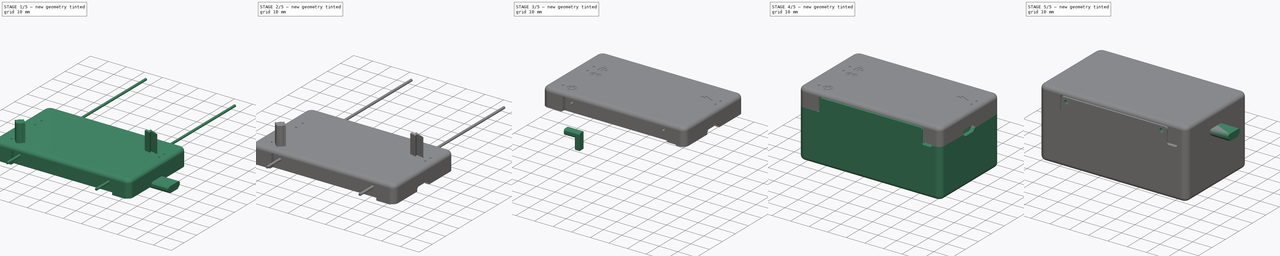
[diagram: build sequence overview — one tinted view per stage of 5, left to right]
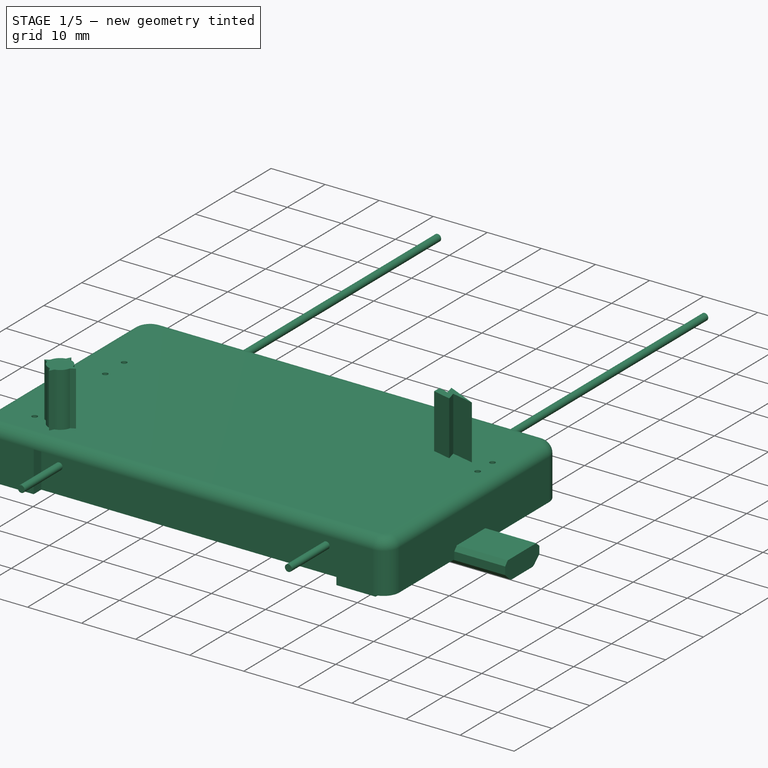
[diagram: stage 1 of 5 — iso view after this stage's code; geometry added in this stage tinted green]
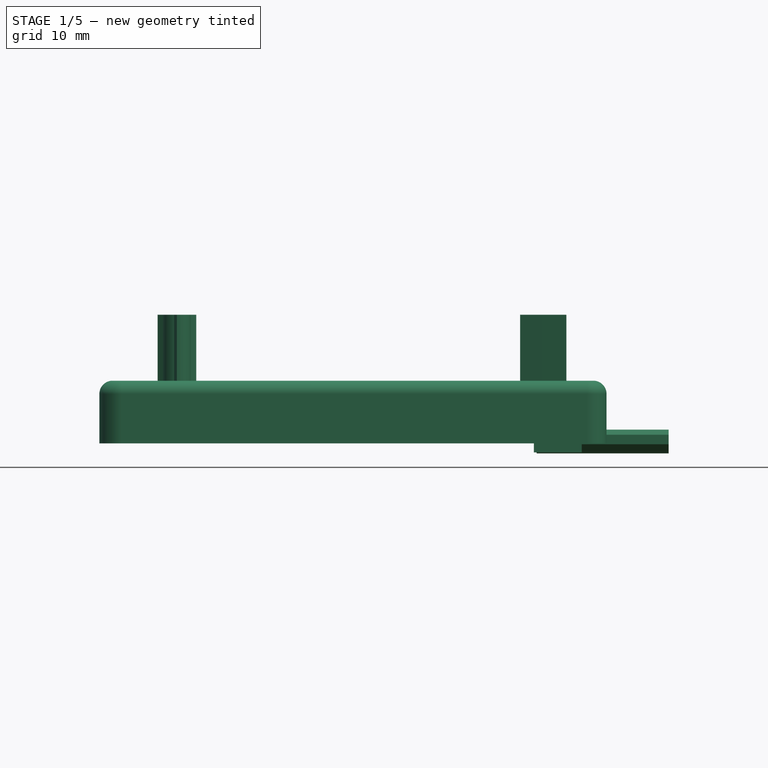
[diagram: stage 1 of 5 — front view after this stage's code; geometry added in this stage tinted green]
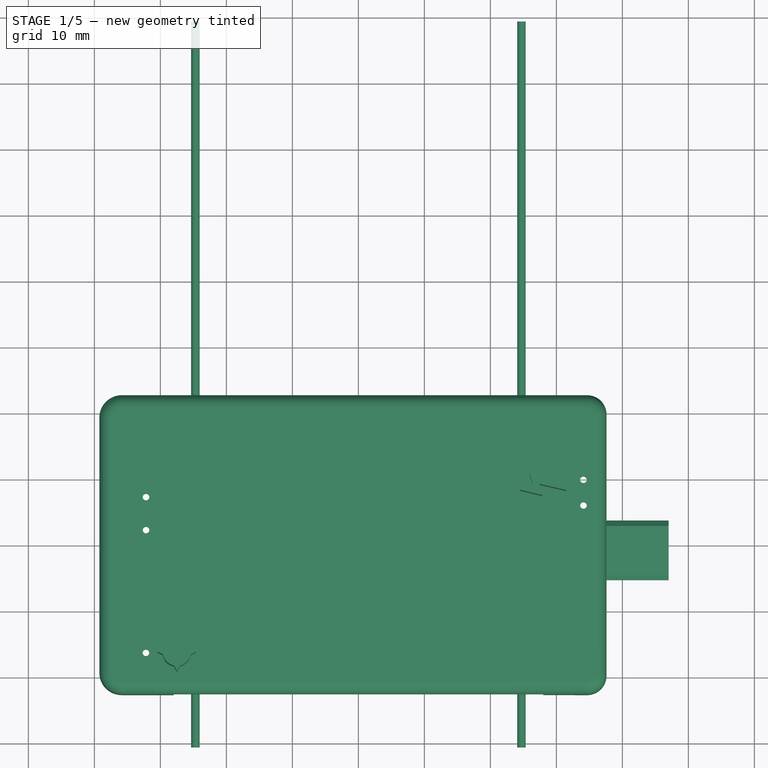
[diagram: stage 1 of 5 — top view after this stage's code; geometry added in this stage tinted green]
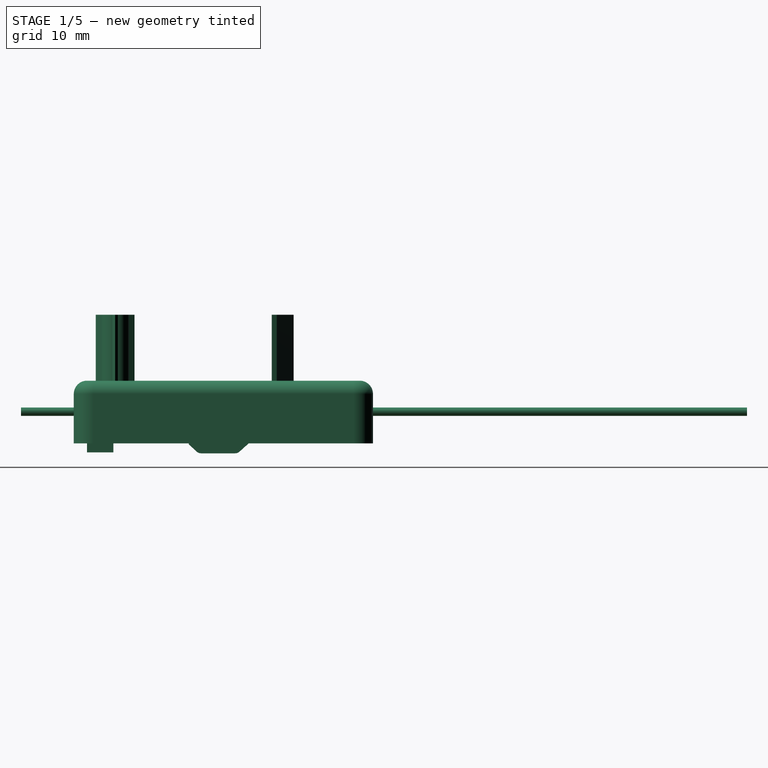
[diagram: stage 1 of 5 — right view after this stage's code; geometry added in this stage tinted green]
FCSTD DOCUMENT  (FreeCAD 0.16R6707 (Git))
Label: bttnc2-enc
License: All rights reserved
LicenseURL: http://en.wikipedia.org/wiki/All_rights_reserved
objects: Part::Feature×105, PartDesign::Fillet×48, Sketcher::SketchObject×29, PartDesign::Pad×24, Part::Cut×14, Part::Part2DObjectPython×6, PartDesign::Pocket×5, Image::ImagePlane×5, Part::MultiFuse×3, App::DocumentObjectGroup×2, Part::Thickness×2
note: 265 computed .brp shape members not serialized (recipe doc carries the construction recipe); baked Part::Feature solids carry a one-line shape summary decoded from their .brp

FEATURE [Part::Feature] Pcb
  Placement = pos=(-148.075,101.713,0) rot=(0,0,1;0rad)
  shape: bbox 69.99 x 40 x 1.6 mm, 47 faces (baked)
FEATURE [App::DocumentObjectGroup] Board_Geoms
  Group = -> [Pcb]
FEATURE [Part::Feature] Shape  label="c_1206_h078_"
  Placement = pos=(-20.7703,1.58625,-1.6) rot=(0.707107,0.707107,0;3.14159rad)
  shape: bbox 1.52 x 3.05 x 0.78 mm, 28 faces (baked)
FEATURE [Part::Feature] Shape001  label="c_0805_h078_"
  Placement = pos=(-0.70425,11.6828,-1.6) rot=(0.707107,0.707107,0;3.14159rad)
  shape: bbox 1.25 x 2 x 0.78 mm, 28 faces (baked)
FEATURE [Part::Feature] Shape002  label="c_0805_h078_001"
  Placement = pos=(-0.83125,-0.44575,-1.6) rot=(0,1,0;3.14159rad)
  shape: bbox 2 x 1.25 x 0.78 mm, 28 faces (baked)
FEATURE [Part::Feature] Shape003  label="c_0805_h078_002"
  Placement = pos=(1.51825,11.6828,-1.6) rot=(-0.707107,0.707107,0;3.14159rad)
  shape: bbox 1.25 x 2 x 0.78 mm, 28 faces (baked)
FEATURE [Part::Feature] Shape004  label="c_0805_h078_003"
  Placement = pos=(-2.86325,8.19025,0) rot=(0,0,1;1.5708rad)
  shape: bbox 1.25 x 2 x 0.78 mm, 28 faces (baked)
FEATURE [Part::Feature] Shape005  label="c_0805_h078_004"
  Placement = pos=(-13.0233,16.0008,-1.6) rot=(-0.707107,0.707107,0;3.14159rad)
  shape: bbox 1.25 x 2 x 0.78 mm, 28 faces (baked)
FEATURE [Part::Feature] Shape006  label="c_0805_h078_005"
  Placement = pos=(-17.3412,6.79325,-1.6) rot=(1,0,0;3.14159rad)
  shape: bbox 2 x 1.25 x 0.78 mm, 28 faces (baked)
FEATURE [Part::Feature] Shape007  label="c_0805_h078_006"
  Placement = pos=(-17.3412,13.0162,-1.6) rot=(0,1,0;3.14159rad)
  shape: bbox 2 x 1.25 x 0.78 mm, 28 faces (baked)
FEATURE [Part::Feature] Shape008  label="c_0805_h078_007"
  Placement = pos=(-19.2462,16.8897,-1.6) rot=(0,1,0;3.14159rad)
  shape: bbox 2 x 1.25 x 0.78 mm, 28 faces (baked)
FEATURE [Part::Feature] Shape009  label="c_0805_h078_008"
  Placement = pos=(8.31275,15.6832,-1.6) rot=(0,1,0;3.14159rad)
  shape: bbox 2 x 1.25 x 0.78 mm, 28 faces (baked)
FEATURE [Part::Feature] Shape010  label="c_0805_h078_009"
  Placement = pos=(-4.53965,-17.5653,0) rot=(0,0,-1;1.5708rad)
  shape: bbox 1.25 x 2 x 0.78 mm, 28 faces (baked)
FEATURE [Part::Feature] Shape011  label="c_1210_h152_"
  Placement = pos=(-1.59325,-17.159,0) rot=(0,0,-1;1.5708rad)
  shape: bbox 2.54 x 3.05 x 1.52 mm, 28 faces (baked)
FEATURE [Part::Feature] Shape012  label="c_0805_h078_010"
  Placement = pos=(-26.5487,-16.1938,0) rot=(0,0,-1;1.5708rad)
  shape: bbox 1.25 x 2 x 0.78 mm, 28 faces (baked)
FEATURE [Part::Feature] Shape013  label="c_0805_h078_011"
  Placement = pos=(-31.9462,-12.8918,0) rot=(0,0,1;3.14159rad)
  shape: bbox 2 x 1.25 x 0.78 mm, 28 faces (baked)
FEATURE [Part::Feature] Shape014  label="c_0805_h078_012"
  Placement = pos=(-31.9462,-10.2248,0) rot=(0,0,1;3.14159rad)
  shape: bbox 2 x 1.25 x 0.78 mm, 28 faces (baked)
FEATURE [Part::Feature] Shape015  label="c_0805_h078_013"
  Placement = pos=(-18.3573,1.07825,-1.6) rot=(0.707107,0.707107,0;3.14159rad)
  shape: bbox 1.25 x 2 x 0.78 mm, 28 faces (baked)
FEATURE [Part::Feature] Shape016  label="c_0805_h078_014"
  Placement = pos=(8.82075,9.46025,-1.6) rot=(0,1,0;3.14159rad)
  shape: bbox 2 x 1.25 x 0.78 mm, 28 faces (baked)
FEATURE [Part::Feature] Shape017  label="c_0805_h078_015"
  Placement = pos=(-28.3903,-2.54125,0) rot=(0,0,1;1.5708rad)
  shape: bbox 1.25 x 2 x 0.78 mm, 28 faces (baked)
FEATURE [Part::Feature] Shape018  label="c_0805_h078_016"
  Placement = pos=(33.2047,-6.16075,-1.6) rot=(1,0,0;3.14159rad)
  shape: bbox 2 x 1.25 x 0.78 mm, 28 faces (baked)
FEATURE [Part::Feature] Shape019  label="c_0805_h078_017"
  Placement = pos=(26.6008,-5.90675,-1.6) rot=(1,0,0;3.14159rad)
  shape: bbox 2 x 1.25 x 0.78 mm, 28 faces (baked)
FEATURE [Part::Feature] Shape020  label="c_0805_h078_018"
  Placement = pos=(-14.5473,7.99975,-1.6) rot=(0.707107,0.707107,0;3.14159rad)
  shape: bbox 1.25 x 2 x 0.78 mm, 28 faces (baked)
FEATURE [Part::Feature] Shape021  label="c_0805_h078_019"
  Placement = pos=(8.31275,17.5882,-1.6) rot=(0,1,0;3.14159rad)
  shape: bbox 2 x 1.25 x 0.78 mm, 28 faces (baked)
FEATURE [Part::Feature] Shape022  label="c_1206_h078_001"
  Placement = pos=(-15.7538,4.25325,-1.6) rot=(0,1,0;3.14159rad)
  shape: bbox 3.05 x 1.52 x 0.78 mm, 28 faces (baked)
FEATURE [Part::Feature] Shape023  label="User Library-led_0805_"
  Placement = pos=(-32.2002,2.22125,0) rot=(0,0,-1;1.5708rad)
  shape: bbox 1.25 x 2.02 x 1.1 mm, 53 faces (baked)
FEATURE [Part::Feature] Shape024  label="User Library-led_0805_001"
  Placement = pos=(33.9667,5.90425,0) rot=(0,0,1;1.5708rad)
  shape: bbox 1.25 x 2.02 x 1.1 mm, 53 faces (baked)
FEATURE [Part::Feature] Shape025  label="User Library-led_0805_002"
  Placement = pos=(-32.2002,7.17425,0) rot=(0,0,-1;1.5708rad)
  shape: bbox 1.25 x 2.02 x 1.1 mm, 53 faces (baked)
FEATURE [Part::Feature] Shape026  label="User Library-led_0805_003"
  Placement = pos=(33.9667,9.84125,0) rot=(0,0,-1;1.5708rad)
  shape: bbox 1.25 x 2.02 x 1.1 mm, 53 faces (baked)
FEATURE [Part::Feature] Shape027  label="c_0805_h078_020"
  Placement = pos=(-24.0723,4.88825,-1.6) rot=(0,1,0;3.14159rad)
  shape: bbox 2 x 1.25 x 0.78 mm, 28 faces (baked)
FEATURE [Part::Feature] Shape028  label="c_0805_h078_021"
  Placement = pos=(-20.8972,6.79325,-1.6) rot=(0.707107,0.707107,0;3.14159rad)
  shape: bbox 1.25 x 2 x 0.78 mm, 28 faces (baked)
FEATURE [Part::Feature] Shape029  label="c_0805_h078_022"
  Placement = pos=(-7.43525,16.1913,-1.6) rot=(0.707107,0.707107,0;3.14159rad)
  shape: bbox 1.25 x 2 x 0.78 mm, 28 faces (baked)
FEATURE [Part::Feature] Shape030  label="c_0805_h078_023"
  Placement = pos=(-2.79975,4.88825,0) rot=(0,0,1;3.14159rad)
  shape: bbox 2 x 1.25 x 0.78 mm, 28 faces (baked)
FEATURE [Part::Feature] Shape031  label="c_0805_h078_024"
  Placement = pos=(-3.94275,-2.98575,0) rot=(0,0,-1;1.5708rad)
  shape: bbox 1.25 x 2 x 0.78 mm, 28 faces (baked)
FEATURE [Part::Feature] Shape032  label="c_0805_h078_025"
  Placement = pos=(-22.9928,16.8897,-1.6) rot=(0,1,0;3.14159rad)
  shape: bbox 2 x 1.25 x 0.78 mm, 28 faces (baked)
FEATURE [Part::Feature] Shape033  label="c_0805_h078_026"
  Placement = pos=(-3.94275,-7.43075,0) rot=(0,0,-1;1.5708rad)
  shape: bbox 1.25 x 2 x 0.78 mm, 28 faces (baked)
FEATURE [Part::Feature] Shape034  label="c_0805_h078_027"
  Placement = pos=(-7.37175,-0.76325,-1.6) rot=(-0.707107,0.707107,0;3.14159rad)
  shape: bbox 1.25 x 2 x 0.78 mm, 28 faces (baked)
FEATURE [Part::Feature] Shape035  label="Fusion_"
  Placement = pos=(30.1567,-18.6702,0) rot=(0,0,1;0rad)
  shape: bbox 7.7 x 5.2 x 1.9 mm, 50 faces (baked)
FEATURE [Part::Feature] Shape036  label="c_0805_h078_028"
  Placement = pos=(-27.5012,-12.8918,0) rot=(0,0,1;3.14159rad)
  shape: bbox 2 x 1.25 x 0.78 mm, 28 faces (baked)
FEATURE [Part::Feature] Shape037  label="c_0805_h078_029"
  Placement = pos=(-28.3903,-10.0977,0) rot=(0,0,1;1.5708rad)
  shape: bbox 1.25 x 2 x 0.78 mm, 28 faces (baked)
FEATURE [Part::Feature] Shape038  label="c_0805_h078_030"
  Placement = pos=(-28.3903,-6.41475,0) rot=(0,0,1;1.5708rad)
  shape: bbox 1.25 x 2 x 0.78 mm, 28 faces (baked)
FEATURE [Part::Feature] Shape039  label="ASSEMBLY_"
  Placement = pos=(33.2047,-8.25625,0) rot=(0,0,-1;1.5708rad)
FEATURE [Part::Feature] Shape040  label="User_Library-MicroUSB-B_Molex_105017-0001_"
  Placement = pos=(32.3792,-0.76325,0) rot=(0,0,1;1.5708rad)
  shape: bbox 5.43 x 8.2 x 3.3 mm, 436 faces (baked)
FEATURE [Part::Feature] Shape041  label="R_0805_"
  Placement = pos=(0.81975,12.8893,0) rot=(0,0,1;0rad)
  shape: bbox 2 x 1.25 x 0.5 mm, 28 faces (baked)
FEATURE [Part::Feature] Shape042  label="R_0805_001"
  Placement = pos=(-4.38725,17.2072,0) rot=(0,0,-1;1.5708rad)
  shape: bbox 1.25 x 2 x 0.5 mm, 28 faces (baked)
FEATURE [Part::Feature] Shape043  label="R_0805_002"
  Placement = pos=(-10.3562,17.0167,-1.6) rot=(0,1,0;3.14159rad)
  shape: bbox 2 x 1.25 x 0.5 mm, 28 faces (baked)
FEATURE [Part::Feature] Shape044  label="R_0805_003"
  Placement = pos=(-15.6903,16.8897,-1.6) rot=(1,0,0;3.14159rad)
  shape: bbox 2 x 1.25 x 0.5 mm, 28 faces (baked)
FEATURE [Part::Feature] Shape045  label="R_0805_004"
  Placement = pos=(-17.3921,14.9339,-1.6) rot=(1,0,0;3.14159rad)
  shape: bbox 2 x 1.25 x 0.5 mm, 28 faces (baked)
FEATURE [Part::Feature] Shape046  label="R_0805_005"
  Placement = pos=(-1.84725,0.82425,0) rot=(0,0,1;1.5708rad)
  shape: bbox 1.25 x 2 x 0.5 mm, 28 faces (baked)
FEATURE [Part::Feature] Shape047  label="R_0805_006"
  Placement = pos=(-4.00625,0.82425,0) rot=(0,0,-1;1.5708rad)
  shape: bbox 1.25 x 2 x 0.5 mm, 28 faces (baked)
FEATURE [Part::Feature] Shape048  label="R_0805_007"
  Placement = pos=(6.02675,-0.44575,-1.6) rot=(1,0,0;3.14159rad)
  shape: bbox 2 x 1.25 x 0.5 mm, 28 faces (baked)
FEATURE [Part::Feature] Shape049  label="R_0805_008"
  Placement = pos=(19.1839,7.12345,-1.6) rot=(1,0,0;3.14159rad)
  shape: bbox 2 x 1.25 x 0.5 mm, 28 faces (baked)
FEATURE [Part::Feature] Shape050  label="R_0805_009"
  Placement = pos=(-29.4062,1.20525,0) rot=(0,0,1;3.14159rad)
  shape: bbox 2 x 1.25 x 0.5 mm, 28 faces (baked)
FEATURE [Part::Feature] Shape051  label="R_0805_010"
  Placement = pos=(0.18475,4.69775,0) rot=(0,0,-1;1.5708rad)
  shape: bbox 1.25 x 2 x 0.5 mm, 28 faces (baked)
FEATURE [Part::Feature] Shape052  label="R_0805_011"
  Placement = pos=(26.4103,-4.00175,-1.6) rot=(1,0,0;3.14159rad)
  shape: bbox 2 x 1.25 x 0.5 mm, 28 faces (baked)
FEATURE [Part::Feature] Shape053  label="R_0805_012"
  Placement = pos=(27.9977,-14.1617,0) rot=(0,0,1;3.14159rad)
  shape: bbox 2 x 1.25 x 0.5 mm, 28 faces (baked)
FEATURE [Part::Feature] Shape054  label="R_0805_013"
  Placement = pos=(26.6008,-13.1457,-1.6) rot=(-0.707107,0.707107,0;3.14159rad)
  shape: bbox 1.25 x 2 x 0.5 mm, 28 faces (baked)
FEATURE [Part::Feature] Shape055  label="R_0805_014"
  Placement = pos=(11.6148,12.3812,-1.6) rot=(-0.707107,0.707107,0;3.14159rad)
  shape: bbox 1.25 x 2 x 0.5 mm, 28 faces (baked)
FEATURE [Part::Feature] Shape056  label="R_0805_015"
  Placement = pos=(-29.4062,6.15825,0) rot=(0,0,1;3.14159rad)
  shape: bbox 2 x 1.25 x 0.5 mm, 28 faces (baked)
FEATURE [Part::Feature] Shape057  label="R_0805_016"
  Placement = pos=(28.2264,1.58625,-1.6) rot=(-0.707107,0.707107,0;3.14159rad)
  shape: bbox 1.25 x 2 x 0.5 mm, 28 faces (baked)
FEATURE [Part::Feature] Shape058  label="R_0805_017"
  Placement = pos=(26.1436,1.53545,-1.6) rot=(0.707107,0.707107,0;3.14159rad)
  shape: bbox 1.25 x 2 x 0.5 mm, 28 faces (baked)
FEATURE [Part::Feature] Shape059  label="User_Library-Bluetooth_HC-06___"
  Placement = pos=(7.42375,17.2707,0) rot=(0,0,-1;1.5708rad)
  shape: bbox 28.05 x 14.06 x 2.387 mm, 1097 faces (baked)
FEATURE [Part::Feature] Shape060  label="DBCC3AE1-0DB8-4925-91AA-5759F3836E66_"
  Placement = pos=(-15.4998,1.07825,-1.6) rot=(1,0,0;3.14159rad)
  shape: bbox 3 x 2.5 x 1.1 mm, 49 faces (baked)
FEATURE [Part::Feature] Shape061  label="BDA441D8-A5C4-4C44-A8A0-E9EBD450C16B_"
  Placement = pos=(8.69375,12.5083,-1.6) rot=(0.707107,0.707107,0;3.14159rad)
  shape: bbox 3 x 2.5 x 1.1 mm, 75 faces (baked)
FEATURE [Part::Feature] Shape062  label="User Library-TQFP32-2_"
  Placement = pos=(-7.81625,8.69825,-1.6) rot=(1,0,0;3.14159rad)
  shape: bbox 9 x 9 x 1 mm, 445 faces (baked)
FEATURE [Part::Feature] Shape063  label="Fusion_001"
  Placement = pos=(26.6008,-9.33575,-1.6) rot=(0.707107,0.707107,0;3.14159rad)
  shape: bbox 2.9 x 2.4 x 1.1 mm, 142 faces (baked)
FEATURE [Part::Feature] Shape064  label="soic_8_39x49_ep_p127_"
  Placement = pos=(27.7437,-9.08175,0) rot=(0,0,1;1.5708rad)
  shape: bbox 4.9 x 6 x 1.75 mm, 161 faces (baked)
FEATURE [Part::Feature] Shape065  label="Fusion_002"
  Placement = pos=(30.0297,-9.46275,-1.6) rot=(0.707107,0.707107,0;3.14159rad)
  shape: bbox 3 x 6.4 x 1.2 mm, 127 faces (baked)
FEATURE [Part::Feature] Shape066  label="Fusion_003"
  Placement = pos=(-17.2142,9.90475,-1.6) rot=(-0.707107,0.707107,0;3.14159rad)
  shape: bbox 2.631 x 3.408 x 0.6002 mm, 91 faces (baked)
FEATURE [Part::Feature] Shape067  label="User Library-MiniMelf-2_"
  Placement = pos=(23.6797,13.5243,-1.6) rot=(0,1,0;3.14159rad)
  shape: bbox 3.7 x 1.732 x 1.732 mm, 117 faces (baked)
FEATURE [Part::Feature] Shape068  label="User Library-MiniMelf-2_001"
  Placement = pos=(-11.4992,0.63375,-1.6) rot=(1,0,0;3.14159rad)
  shape: bbox 3.7 x 1.732 x 1.732 mm, 117 faces (baked)
FEATURE [Part::Feature] Shape069  label="R_0805_018"
  Placement = pos=(-10.7372,-1.71575,-1.6) rot=(1,0,0;3.14159rad)
  shape: bbox 2 x 1.25 x 0.5 mm, 28 faces (baked)
FEATURE [Part::Feature] Shape070  label="c_0805_h078_031"
  Placement = pos=(4.69325,11.6828,-1.6) rot=(0.707107,0.707107,0;3.14159rad)
  shape: bbox 1.25 x 2 x 0.78 mm, 28 faces (baked)
FEATURE [Part::Feature] Shape071  label="c_0805_h078_032"
  Placement = pos=(-0.95825,4.76125,-1.6) rot=(-0.707107,0.707107,0;3.14159rad)
  shape: bbox 1.25 x 2 x 0.78 mm, 28 faces (baked)
FEATURE [Part::Feature] Shape072  label="R_0805_019"
  Placement = pos=(2.72475,-0.44575,-1.6) rot=(1,0,0;3.14159rad)
  shape: bbox 2 x 1.25 x 0.5 mm, 28 faces (baked)
FEATURE [Part::Feature] Shape073  label="R_0805_020"
  Placement = pos=(2.15325,4.69775,0) rot=(0,0,-1;1.5708rad)
  shape: bbox 1.25 x 2 x 0.5 mm, 28 faces (baked)
FEATURE [Part::Feature] Shape074  label="soic_8_39x49_ep_p127_001_"
  Placement = pos=(2.78825,4.88825,-1.6) rot=(0,1,0;3.14159rad)
  shape: bbox 4.9 x 6 x 1.75 mm, 161 faces (baked)
FEATURE [Part::Feature] Shape075  label="c_1206_h078_002"
  Placement = pos=(22.1558,-9.46275,0) rot=(0,0,-1;1.5708rad)
  shape: bbox 1.52 x 3.05 x 0.78 mm, 28 faces (baked)
FEATURE [Part::Feature] Shape076  label="c_0805_h078_033"
  Placement = pos=(22.1811,-9.38655,-1.6) rot=(-0.707107,0.707107,0;3.14159rad)
  shape: bbox 1.25 x 2 x 0.78 mm, 28 faces (baked)
FEATURE [Part::Feature] Shape077  label="c_0805_h078_034"
  Placement = pos=(22.9178,-17.4638,0) rot=(0,0,1;3.14159rad)
  shape: bbox 2 x 1.25 x 0.78 mm, 28 faces (baked)
FEATURE [Part::Feature] Shape078  label="c_1206_h078_003"
  Placement = pos=(23.0448,-15.1777,0) rot=(0,0,1;3.14159rad)
  shape: bbox 3.05 x 1.52 x 0.78 mm, 28 faces (baked)
FEATURE [Part::Feature] Shape079  label="c_0805_h078_035"
  Placement = pos=(12.4276,-8.06575,-1.6) rot=(0.707107,0.707107,0;3.14159rad)
  shape: bbox 1.25 x 2 x 0.78 mm, 28 faces (baked)
FEATURE [Part::Feature] Shape080  label="c_1206_h078_004"
  Placement = pos=(14.5611,-8.06575,-1.6) rot=(-0.707107,0.707107,0;3.14159rad)
  shape: bbox 1.52 x 3.05 x 0.78 mm, 28 faces (baked)
FEATURE [Part::Feature] Shape081  label="User Library-MiniMelf-2_002"
  Placement = pos=(19.1077,-11.7487,-1.6) rot=(0.707107,0.707107,0;3.14159rad)
  shape: bbox 1.732 x 3.7 x 1.732 mm, 117 faces (baked)
FEATURE [Part::Feature] Shape082  label="User Library-led_0805_004"
  Placement = pos=(-32.2002,-16.397,0) rot=(0,0,1;1.5708rad)
  shape: bbox 1.25 x 2.02 x 1.1 mm, 53 faces (baked)
FEATURE [Part::Feature] Shape083  label="User Library-MiniMelf-2_003"
  Placement = pos=(3.74075,-3.23975,-1.6) rot=(0,1,0;3.14159rad)
  shape: bbox 3.7 x 1.732 x 1.732 mm, 117 faces (baked)
FEATURE [Part::Feature] Shape084  label="User Library-MiniMelf-2_004"
  Placement = pos=(9.58275,-1.36015,-1.6) rot=(0.707107,0.707107,0;3.14159rad)
  shape: bbox 1.732 x 3.7 x 1.732 mm, 117 faces (baked)
FEATURE [Part::Feature] Shape085  label="DBCC3AE1-0DB8-4925-91AA-5759F3836E66_001"
  Placement = pos=(-29.8889,-16.6001,-1.6) rot=(0,1,0;3.14159rad)
  shape: bbox 3 x 2.5 x 1.1 mm, 49 faces (baked)
FEATURE [Part::Feature] Shape086  label="R_0805_021"
  Placement = pos=(15.4247,-3.36675,-1.6) rot=(1,0,0;3.14159rad)
  shape: bbox 2 x 1.25 x 0.5 mm, 28 faces (baked)
FEATURE [Part::Feature] Shape087  label="R_0805_022"
  Placement = pos=(-30.0921,-13.6029,-1.6) rot=(0,1,0;3.14159rad)
  shape: bbox 2 x 1.25 x 0.5 mm, 28 faces (baked)
FEATURE [Part::Feature] Shape088  label="R_0805_023"
  Placement = pos=(10.3447,-8.06575,-1.6) rot=(0.707107,0.707107,0;3.14159rad)
  shape: bbox 1.25 x 2 x 0.5 mm, 28 faces (baked)
FEATURE [Part::Feature] Shape089  label="R_0805_024"
  Placement = pos=(-0.88205,-2.88415,-1.6) rot=(1,0,0;3.14159rad)
  shape: bbox 2 x 1.25 x 0.5 mm, 28 faces (baked)
FEATURE [Part::Feature] Shape090  label="User Library-Tact Sw RA 8.35mm 1-1825027-1_"
  Placement = pos=(-34.8672,13.9053,4.0005) rot=(0.57735,-0.57735,-0.57735;2.0944rad)
  shape: bbox 12.36 x 8.407 x 10.52 mm, 118 faces (baked)
FEATURE [Part::Feature] Shape091  label="User_Library-quectel-l80_"
  Placement = pos=(11.3607,-9.71675,0) rot=(0,0,1;0rad)
  shape: bbox 16 x 16 x 6.95 mm, 75 faces (baked)
FEATURE [Part::Feature] Shape092  label="R_0805_025"
  Placement = pos=(22.5368,-2.93495,0) rot=(0,0,1;0rad)
  shape: bbox 2 x 1.25 x 0.5 mm, 28 faces (baked)
FEATURE [Part::Feature] Shape093  label="R_0805_026"
  Placement = pos=(22.0796,-5.32255,-1.6) rot=(-0.707107,0.707107,0;3.14159rad)
  shape: bbox 1.25 x 2 x 0.5 mm, 28 faces (baked)
FEATURE [Part::Feature] Shape094  label="User_Library-sot363_"
  Placement = pos=(22.5368,-5.77975,0) rot=(0,0,-1;1.5708rad)
  shape: bbox 2.105 x 2.3 x 1.01 mm, 99 faces (baked)
FEATURE [Part::Feature] Shape095  label="User Library-MiniMelf-2_005"
  Placement = pos=(9.32875,-13.2474,-1.6) rot=(-0.707107,0.707107,0;3.14159rad)
  shape: bbox 1.732 x 3.7 x 1.732 mm, 117 faces (baked)
FEATURE [Part::Feature] Shape096  label="c_0805_h078_036"
  Placement = pos=(27.8072,-0.00125,0) rot=(0,0,1;1.5708rad)
  shape: bbox 1.25 x 2 x 0.78 mm, 28 faces (baked)
FEATURE [Part::Feature] Shape097  label="c_0805_h078_037"
  Placement = pos=(-3.47285,-11.063,0) rot=(0,0,1;3.14159rad)
  shape: bbox 2 x 1.25 x 0.78 mm, 28 faces (baked)
FEATURE [Part::Feature] Shape098  label="c_0805_h078_038"
  Placement = pos=(-3.47285,-13.095,0) rot=(0,0,1;3.14159rad)
  shape: bbox 2 x 1.25 x 0.78 mm, 28 faces (baked)
FEATURE [Part::Feature] Shape099  label="R_0805_027"
  Placement = pos=(-0.47565,-11.9773,0) rot=(0,0,1;1.5708rad)
  shape: bbox 1.25 x 2 x 0.5 mm, 28 faces (baked)
FEATURE [Part::Feature] Shape100  label="User_Library-620-SMA-02-112-TGG_SMA_Female_for_PCB_edge_Mount_"
  Placement = pos=(-32.8606,-5.30985,0) rot=(0,0,-1;1.5708rad)
  shape: bbox 13.6 x 6.001 x 6.05 mm, 138 faces (baked)
FEATURE [Part::Feature] Shape101  label="dra818_"
  Placement = pos=(-15.4362,0.44325,0) rot=(0,0,-1;1.5708rad)
  shape: bbox 19.03 x 36 x 3.008 mm, 191 faces, 15 solids (baked)
FEATURE [App::DocumentObjectGroup] Step_Models
  Group = -> [Shape,Shape001,Shape002,Shape003,Shape004,Shape005,Shape006,Shape007,Shape008,Shape009,Shape010,Shape011,Shape012,Shape013,Shape014,Shape015,Shape016,Shape017,Shape018,Shape019,Shape020,Shape021,Shape022,Shape023,Shape024,Shape025,Shape026,Shape027,Shape028,Shape029,Shape030,Shape031,Shape032,Shape033,Shape034,Shape035,Shape036,Shape037,Shape038,Shape039,Shape040,Shape041,Shape042,Shape043,+58 more]
FEATURE [Part::Feature] Shape127  label="User Library-18650-1"
  Placement = pos=(-0.000379549,42.5728,-12.9007) rot=(0,0,1;0rad)
  shape: bbox 65 x 19.5 x 19.5 mm, 96 faces (baked)
FEATURE [Part::Feature] Shape152  label="User Library-18650-002"
  shape: bbox 65 x 19.5 x 19.5 mm, 96 faces (baked)
FEATURE [Sketcher::SketchObject] Sketch001
  Placement = pos=(-42,0,0) rot=(0.57735,-0.57735,-0.57735;2.0944rad)
  sketch-geometry (2):
    g0: Circle CenterX=5.32005 CenterY=0.515527 CenterZ=0 NormalX=0 NormalY=0 NormalZ=1 Radius=3.6
    g1: Circle CenterX=-13.9058 CenterY=4.001 CenterZ=0 NormalX=0 NormalY=0 NormalZ=1 Radius=2.2
  constraints (2):
    c: Radius(g1) = 2.2
    c: Radius(g0) = 3.6
FEATURE [PartDesign::Pad] Pad001
  Length = 1
  Length2 = 5
  Placement = pos=(-42,0,0) rot=(0.57735,-0.57735,-0.57735;2.0944rad)
  Sketch = -> Sketch001
  Type = 4
FEATURE [Sketcher::SketchObject] Sketch003
  Placement = pos=(0,-25,0) rot=(1,0,0;1.5708rad)
  sketch-geometry (4):
    g0: LineSegment StartX=27.5093 StartY=1.40646 StartZ=0 EndX=32.7622 EndY=1.40646 EndZ=0
    g1: LineSegment StartX=32.7622 StartY=1.40646 StartZ=0 EndX=32.7622 EndY=-0.005629 EndZ=0
    g2: LineSegment StartX=32.7622 StartY=-0.005629 StartZ=0 EndX=27.5093 EndY=-0.005629 EndZ=0
    g3: LineSegment StartX=27.5093 StartY=-0.005629 StartZ=0 EndX=27.5093 EndY=1.40646 EndZ=0
  constraints (8):
    c: Coincident(g0,g1)
    c: Coincident(g1,g2)
    c: Coincident(g2,g3)
    c: Coincident(g3,g0)
    c: Horizontal(g0)
    c: Horizontal(g2)
    c: Vertical(g1)
    c: Vertical(g3)
FEATURE [PartDesign::Pad] Pad003
  Length = 1
  Length2 = 5
  Placement = pos=(0,-25,0) rot=(1,0,0;1.5708rad)
  Sketch = -> Sketch003
  Type = 4
FEATURE [PartDesign::Pad] Pad
  Length = 7.5
  Length2 = 100
  Placement = pos=(0,0,1) rot=(0,0,1;0rad)
  Sketch = -> Sketch
  Type = 0
FEATURE [Part::Thickness] Thickness
  Faces = -> Pad [Face9]
  Intersection = false
  Join = 0
  Mode = 0
  SelfIntersection = false
  Value = 2
FEATURE [Sketcher::SketchObject] Sketch007
  Placement = pos=(0,0,1) rot=(0,0,1;0rad)
  Support = -> Thickness001 [Face10]
FEATURE [Sketcher::SketchObject] Sketch008
  Placement = pos=(0,-22.6633,0) rot=(1,0,0;1.5708rad)
  Support = -> Thickness [Face11]
  sketch-geometry (4):
    g0: LineSegment StartX=-28 StartY=8.5 StartZ=0 EndX=28 EndY=8.5 EndZ=0
    g1: LineSegment StartX=28 StartY=8.5 StartZ=0 EndX=28 EndY=1 EndZ=0
    g2: LineSegment StartX=28 StartY=1 StartZ=0 EndX=-28 EndY=1 EndZ=0
    g3: LineSegment StartX=-28 StartY=1 StartZ=0 EndX=-28 EndY=8.5 EndZ=0
  constraints (12):
    c: Coincident(g0,g1)
    c: Coincident(g1,g2)
    c: Coincident(g2,g3)
    c: Coincident(g3,g0)
    c: Horizontal(g0)
    c: Horizontal(g2)
    c: Vertical(g1)
    c: Vertical(g3)
    c: DistanceY(g-1,g2) = 1
    c: DistanceY(g2,g0) = 7.5
    c: Symmetric(g0,g0,g-2)
    c: DistanceX(g0,g0) = 56
FEATURE [Sketcher::SketchObject] Sketch009
  Placement = pos=(0,0,1) rot=(0,0,1;0rad)
  Support = -> Thickness001 [Face10]
  sketch-geometry (8):
    g0: LineSegment StartX=-27.5 StartY=-20.9633 StartZ=0 EndX=27.5 EndY=-20.9633 EndZ=0
    g1: LineSegment StartX=27.5 StartY=-20.9633 StartZ=0 EndX=27.5 EndY=-22.6634 EndZ=0
    g2: LineSegment StartX=27.5 StartY=-22.6634 StartZ=0 EndX=-27.5 EndY=-22.6634 EndZ=0
    g3: LineSegment StartX=-27.5 StartY=-22.6634 StartZ=0 EndX=-27.5 EndY=-20.9633 EndZ=0
    g4: LineSegment StartX=-27.5 StartY=22.6634 StartZ=0 EndX=27.5 EndY=22.6634 EndZ=0
    g5: LineSegment StartX=27.5 StartY=22.6634 StartZ=0 EndX=27.5 EndY=20.9633 EndZ=0
    g6: LineSegment StartX=27.5 StartY=20.9633 StartZ=0 EndX=-27.5 EndY=20.9633 EndZ=0
    g7: LineSegment StartX=-27.5 StartY=20.9633 StartZ=0 EndX=-27.5 EndY=22.6634 EndZ=0
  constraints (24):
    c: Coincident(g0,g1)
    c: Coincident(g1,g2)
    c: Coincident(g2,g3)
    c: Coincident(g3,g0)
    c: Horizontal(g0)
    c: Horizontal(g2)
    c: Vertical(g1)
    c: Vertical(g3)
    c: DistanceX(g0,g0) = 55
    c: DistanceY(g2,g0) = 1.7
    c: Symmetric(g0,g0,g-2)
    c: Coincident(g5,g6)
    c: Coincident(g6,g7)
    c: Coincident(g7,g4)
    c: Horizontal(g4)
    c: Horizontal(g6)
    c: Vertical(g5)
    c: Vertical(g7)
    c: DistanceY(g6,g4) = 1.7
    c: DistanceX(g4,g4) = 55
    c: Symmetric(g4,g4,g-2)
    c: Symmetric(g5,g0,g-1)
    c: Coincident(g5,g4)
    c: DistanceY(g1,g4) = 45.3267
FEATURE [PartDesign::Pocket] Pocket
  Length = 50
  Sketch = -> Sketch008
  Type = 0
FEATURE [PartDesign::Pad] Pad008
  Length = 2
  Length2 = 100
  Sketch = -> Sketch010
  Type = 0
FEATURE [Part::Cut] Cut  label="Top"
  Base = -> Pad008
  Tool = -> Pad003
FEATURE [PartDesign::Pad] Pad010
  Length = 10
  Length2 = 10
  Placement = pos=(37,0,0) rot=(0.57735,0.57735,0.57735;2.0944rad)
  Sketch = -> Sketch002
  Type = 4
FEATURE [PartDesign::Fillet] Fillet
  Base = -> Pad010 [Edge17]
  Placement = pos=(37,0,0) rot=(0.57735,0.57735,0.57735;2.0944rad)
  Radius = 1
FEATURE [PartDesign::Fillet] Fillet006
  Base = -> Fillet [Edge3]
  Placement = pos=(37,0,0) rot=(0.57735,0.57735,0.57735;2.0944rad)
  Radius = 1
FEATURE [PartDesign::Pad] Pad011  label="LedCuts"
  Length = 10
  Length2 = 5
  Placement = pos=(0,0,9) rot=(0,0,1;0rad)
  Sketch = -> Sketch004
  Type = 4
FEATURE [Part::Cut] Cut002  label="Top001"
  Base = -> Cut
  Tool = -> Pad011
FEATURE [Part::Cut] Cut003
  Base = -> Cut002
  Tool = -> Pad001
FEATURE [Sketcher::SketchObject] Sketch015
  Placement = pos=(0,20.6633,0) rot=(1,0,0;1.5708rad)
  Support = -> Pocket001 [Face23]
FEATURE [Part::Part2DObjectPython] Clone2D001  label="Clone of Sketch011 (2D)"  # Draft 2D object (typed FeaturePython)
  Objects = -> [Sketch011]
  Placement = pos=(0,20.6633,0) rot=(1,0,0;1.5708rad)
  Scale = (1,1,1)
FEATURE [PartDesign::Pad] Pad013
  Length = 2
  Length2 = 100
  Placement = pos=(0,20.6633,0) rot=(1,0,0;1.5708rad)
  Sketch = -> Clone2D001
  Type = 0
FEATURE [Part::Part2DObjectPython] Clone2D002  label="Clone of Sketch018 (2D)"  # Draft 2D object (typed FeaturePython)
  Placement = pos=(0,-18.6633,0) rot=(0,0.707107,0.707107;3.14159rad)
  Scale = (1,1,1)
FEATURE [PartDesign::Pad] Pad016
  Length = 2
  Length2 = 2
  Placement = pos=(0,-18.6633,0) rot=(0,0.707107,0.707107;3.14159rad)
  Sketch = -> Clone2D002
  Type = 4
FEATURE [Part::Part2DObjectPython] Clone2D005  label="Clone of Sketch020 (2D)001"  # Draft 2D object (typed FeaturePython)
  Objects = -> [Sketch020]
  Placement = pos=(0,-20.6633,0) rot=(1,0,0;1.5708rad)
  Scale = (1,1,1)
FEATURE [PartDesign::Pad] Pad021
  Length = 10
  Length2 = 100
  Placement = pos=(0,-20.6633,0) rot=(1,0,0;1.5708rad)
  Sketch = -> Clone2D005
  Type = 4
FEATURE [PartDesign::Pad] Pad024
  Length = 10
  Length2 = 0.2
  Placement = pos=(0,0,10.5) rot=(0,0,1;0rad)
  Sketch = -> Sketch025
  Type = 4
FEATURE [PartDesign::Pad] Pad025
  Length = 0.2
  Length2 = 100
  Placement = pos=(0,0,10.3) rot=(0,0,1;0rad)
  Sketch = -> Sketch026
  Type = 0
FEATURE [Image::ImagePlane] ImagePlane003  label="Power"
  Placement = pos=(28,9,0) rot=(0,0,1;1.5708rad)
  XSize = 7
  YSize = 7
FEATURE [Sketcher::SketchObject] Sketch029  label="POwer"
  Placement = pos=(0,0,10.5) rot=(0,0,1;0rad)
  sketch-geometry (7):
    g0: LineSegment StartX=24.5065 StartY=9.62336 StartZ=0 EndX=26.3725 EndY=8.9622 EndZ=0
    g1: LineSegment StartX=26.3725 StartY=8.9622 StartZ=0 EndX=25.9291 EndY=10.6498 EndZ=0
    g2: LineSegment StartX=25.9291 StartY=10.6498 StartZ=0 EndX=31.5177 EndY=8.08512 EndZ=0
    g3: LineSegment StartX=31.5177 StartY=8.08512 StartZ=0 EndX=27.3976 EndY=9.03114 EndZ=0
    g4: LineSegment StartX=27.3976 StartY=9.03114 StartZ=0 EndX=27.856 EndY=7.32444 EndZ=0
    g5: LineSegment StartX=27.856 StartY=7.32444 StartZ=0 EndX=24.5065 EndY=8.13373 EndZ=0
    g6: LineSegment StartX=24.5065 StartY=8.13373 StartZ=0 EndX=24.5065 EndY=9.62336 EndZ=0
  constraints (8):
    c: Coincident(g0,g1)
    c: Coincident(g1,g2)
    c: Coincident(g2,g3)
    c: Coincident(g3,g4)
    c: Coincident(g4,g5)
    c: Coincident(g5,g6)
    c: Coincident(g6,g0)
    c: Vertical(g6)
FEATURE [PartDesign::Pad] Pad026
  Length = 10
  Length2 = 0.2
  Placement = pos=(0,0,10.5) rot=(0,0,1;0rad)
  Sketch = -> Sketch029
  Type = 4
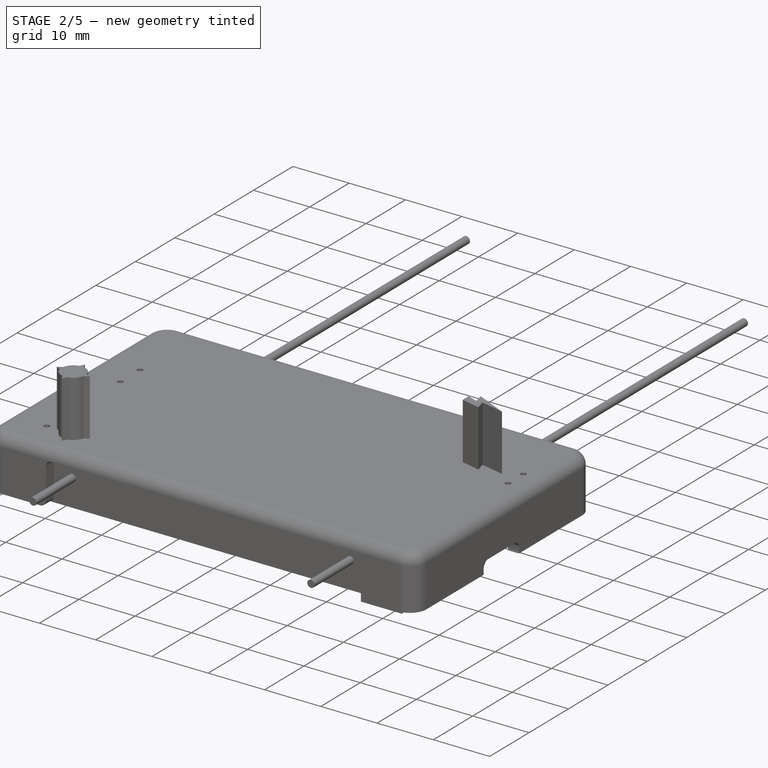
[diagram: stage 2 of 5 — iso view after this stage's code; geometry added in this stage tinted green]
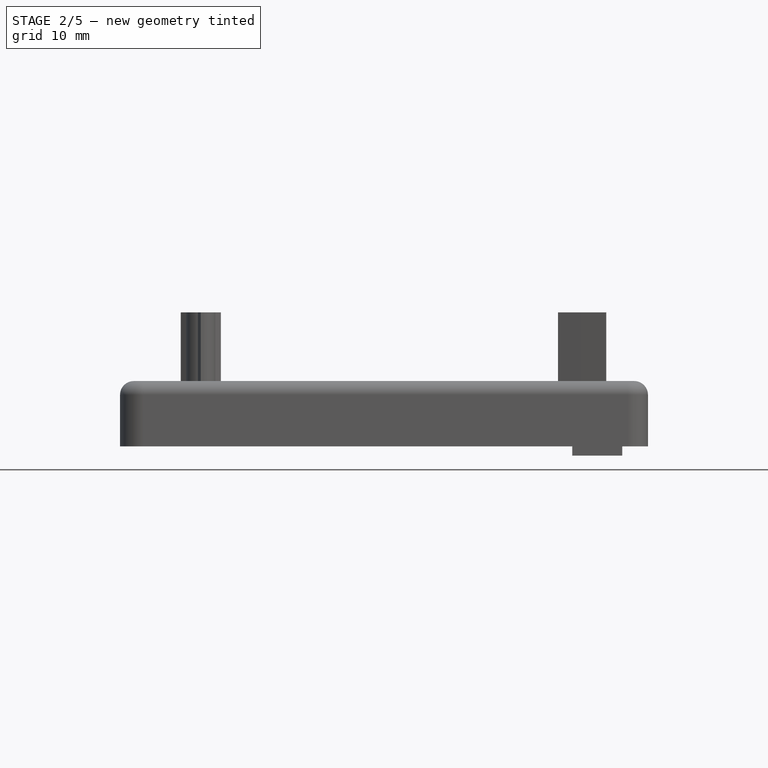
[diagram: stage 2 of 5 — front view after this stage's code; geometry added in this stage tinted green]
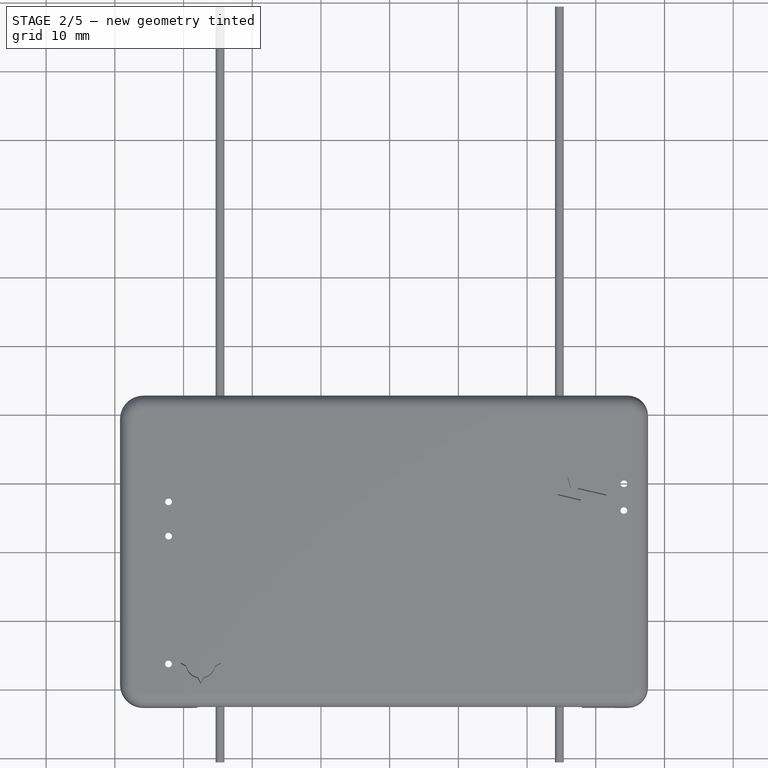
[diagram: stage 2 of 5 — top view after this stage's code; geometry added in this stage tinted green]
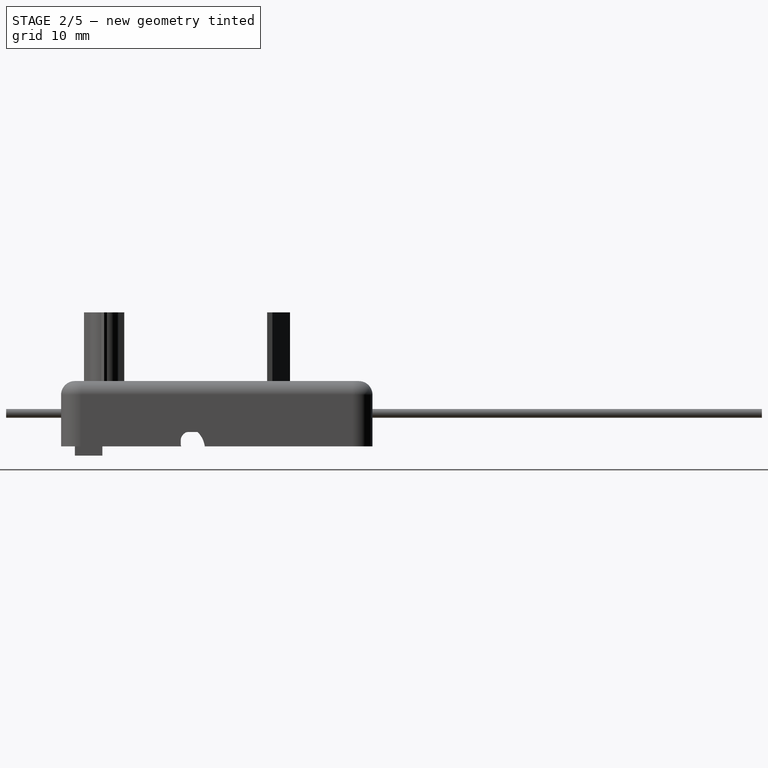
[diagram: stage 2 of 5 — right view after this stage's code; geometry added in this stage tinted green]
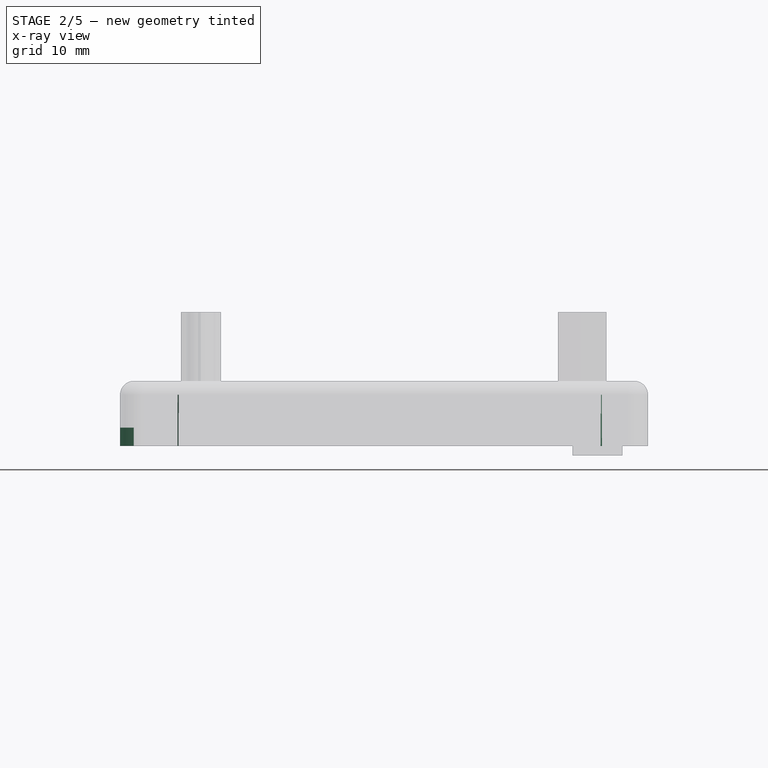
[diagram: stage 2 of 5 — x-ray composite at the front view; earlier geometry ghosted, this stage's added geometry solid]
FEATURE [PartDesign::Fillet] Fillet007
  Base = -> Fillet006 [Edge25]
  Placement = pos=(37,0,0) rot=(0.57735,0.57735,0.57735;2.0944rad)
  Radius = 1
FEATURE [PartDesign::Fillet] Fillet008
  Base = -> Fillet007 [Edge19]
  Placement = pos=(37,0,0) rot=(0.57735,0.57735,0.57735;2.0944rad)
  Radius = 1
FEATURE [PartDesign::Fillet] Fillet009
  Base = -> Fillet008 [Edge20]
  Placement = pos=(37,0,0) rot=(0.57735,0.57735,0.57735;2.0944rad)
  Radius = 1
FEATURE [PartDesign::Fillet] Fillet010
  Base = -> Fillet009 [Edge21]
  Placement = pos=(37,0,0) rot=(0.57735,0.57735,0.57735;2.0944rad)
  Radius = 1
FEATURE [PartDesign::Fillet] Fillet011
  Base = -> Fillet010 [Edge22]
  Placement = pos=(37,0,0) rot=(0.57735,0.57735,0.57735;2.0944rad)
  Radius = 1
FEATURE [PartDesign::Fillet] Fillet012  label="UsbCut"
  Base = -> Fillet011 [Edge23]
  Placement = pos=(37,0,0) rot=(0.57735,0.57735,0.57735;2.0944rad)
  Radius = 1
FEATURE [Part::Cut] Cut005
  Base = -> Cut003
  Tool = -> Fillet012
FEATURE [Sketcher::SketchObject] Sketch012
  Placement = pos=(-39.2421,0,0) rot=(0.57735,-0.57735,-0.57735;2.0944rad)
  Support = -> Cut005 [Face14]
  sketch-geometry (5):
    g0: LineSegment StartX=-16.0883 StartY=3.72307 StartZ=0 EndX=-16.0883 EndY=1 EndZ=0
    g1: LineSegment StartX=-16.0883 StartY=1 StartZ=0 EndX=-11.7412 EndY=1 EndZ=0
    g2: LineSegment StartX=-11.7412 StartY=1 StartZ=0 EndX=-11.7412 EndY=3.72307 EndZ=0
    g3: Circle CenterX=-13.758 CenterY=3.50704 CenterZ=0 NormalX=0 NormalY=0 NormalZ=1 Radius=0.042308
    g4: LineSegment StartX=-16.0883 StartY=3.72307 StartZ=0 EndX=-11.7412 EndY=3.72307 EndZ=0
  constraints (10):
    c: Coincident(g0,g1)
    c: Horizontal(g1)
    c: Coincident(g1,g2)
    c: Vertical(g2)
    c: Vertical(g0)
    c: DistanceY(g-1,g0) = 1
    c: DistanceY(g-1,g0) = 3.72307
    c: Coincident(g4,g0)
    c: Horizontal(g4)
    c: Coincident(g4,g2)
FEATURE [PartDesign::Pocket] Pocket001  label="Top002"
  Length = 5
  Sketch = -> Sketch012
  Type = 0
FEATURE [Part::MultiFuse] Fusion
  Shapes = -> [Pocket001,Pad013]
FEATURE [PartDesign::Fillet] Fillet024
  Base = -> Fusion [Edge104]
  Radius = 1
FEATURE [PartDesign::Fillet] Fillet025
  Base = -> Fillet024 [Edge9]
  Radius = 1
FEATURE [PartDesign::Fillet] Fillet026
  Base = -> Fillet025 [Edge47]
  Radius = 1
FEATURE [PartDesign::Fillet] Fillet027
  Base = -> Fillet026 [Edge168]
  Radius = 1
FEATURE [PartDesign::Fillet] Fillet028
  Base = -> Fillet027 [Edge40]
  Radius = 1
FEATURE [PartDesign::Fillet] Fillet029
  Base = -> Fillet028 [Edge33]
  Radius = 1
FEATURE [PartDesign::Fillet] Fillet030
  Base = -> Fillet029 [Edge46]
  Radius = 1
FEATURE [PartDesign::Fillet] Fillet031
  Base = -> Fillet030 [Edge105]
  Radius = 1
FEATURE [PartDesign::Fillet] Fillet032
  Base = -> Fillet031 [Edge29]
  Radius = 1
FEATURE [PartDesign::Fillet] Fillet033
  Base = -> Fillet032 [Edge149]
  Radius = 1
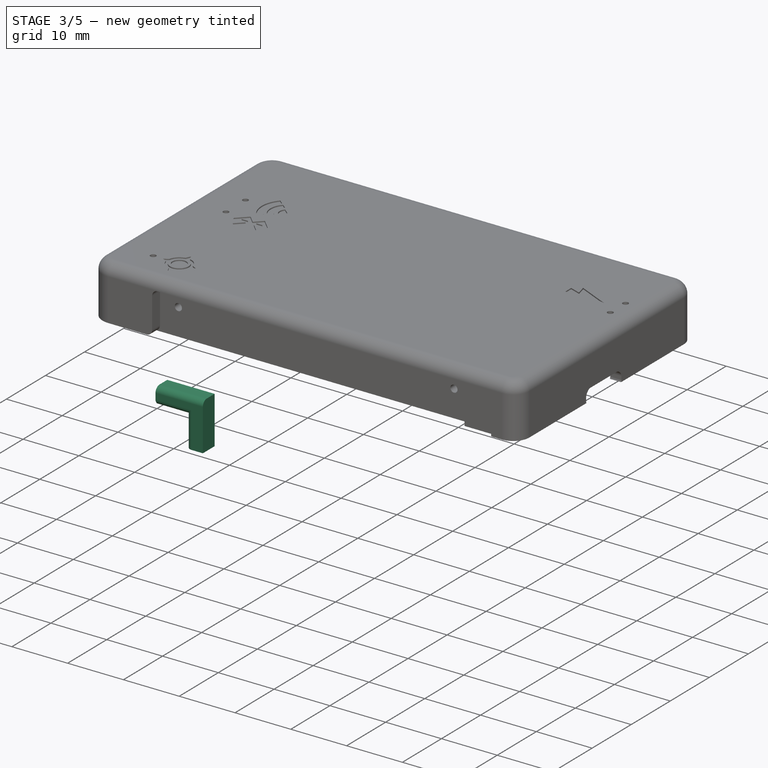
[diagram: stage 3 of 5 — iso view after this stage's code; geometry added in this stage tinted green]
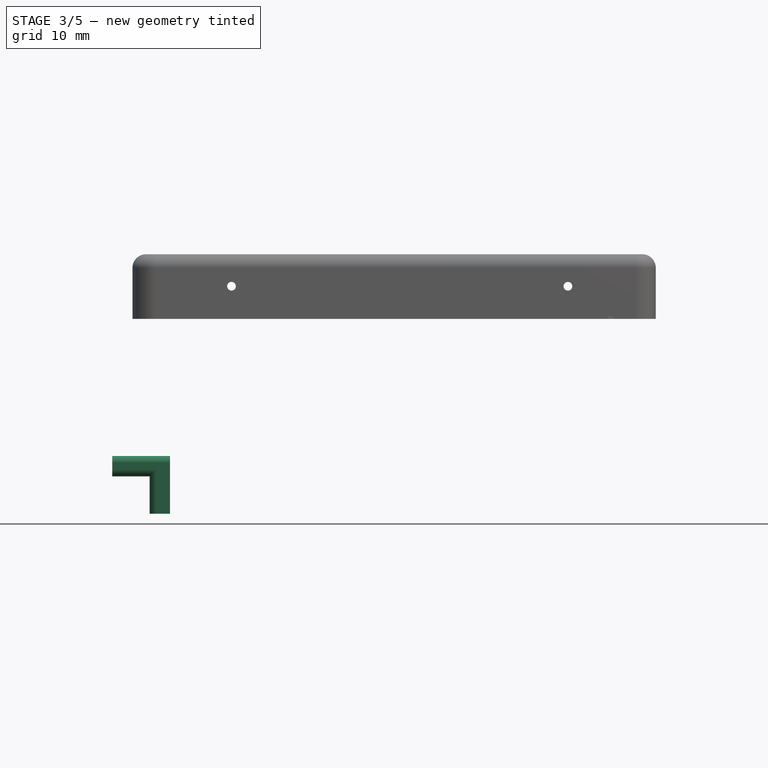
[diagram: stage 3 of 5 — front view after this stage's code; geometry added in this stage tinted green]
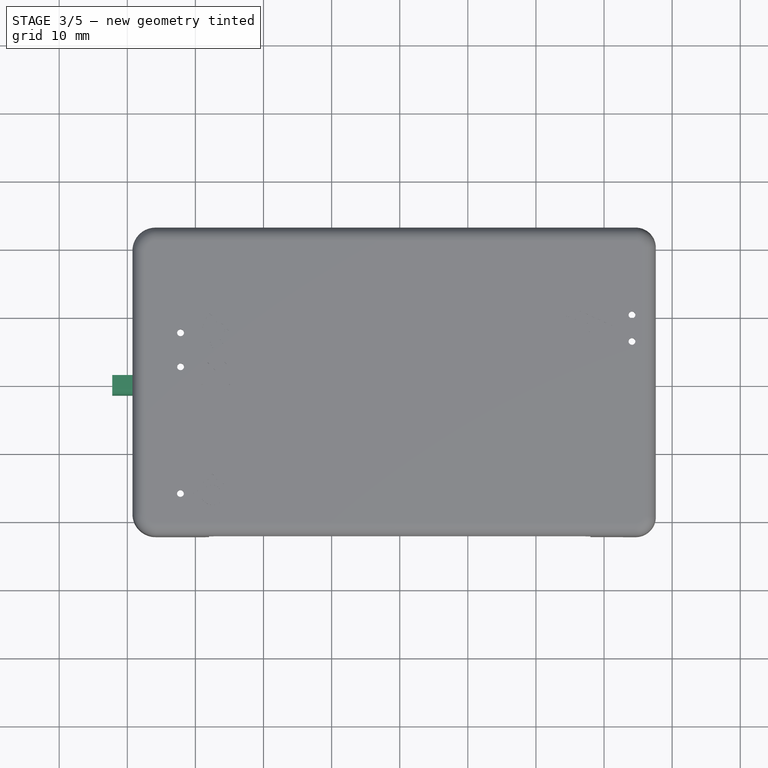
[diagram: stage 3 of 5 — top view after this stage's code; geometry added in this stage tinted green]
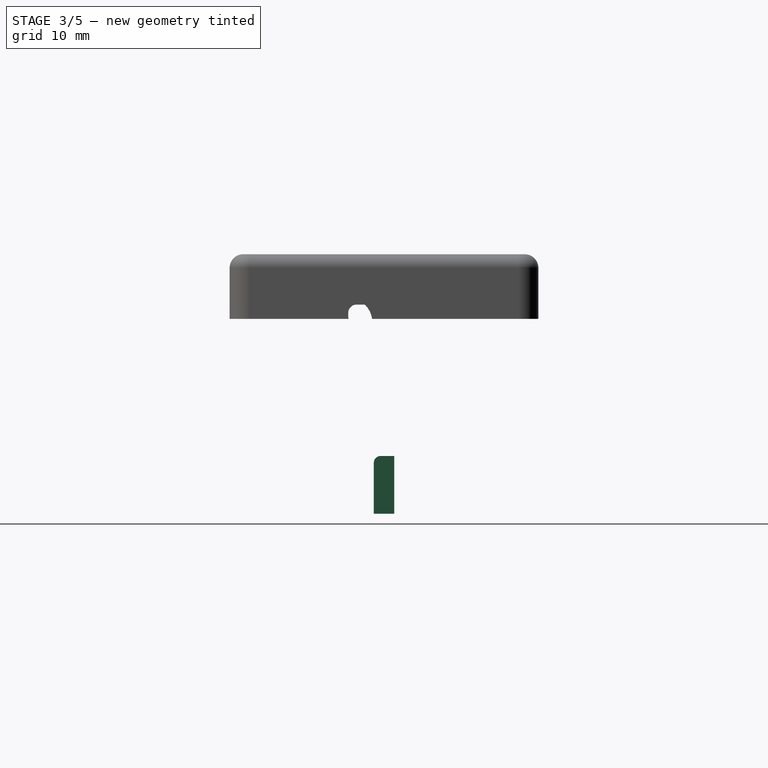
[diagram: stage 3 of 5 — right view after this stage's code; geometry added in this stage tinted green]
FEATURE [PartDesign::Fillet] Fillet034
  Base = -> Fillet033 [Edge121]
  Radius = 1
FEATURE [PartDesign::Fillet] Fillet035
  Base = -> Fillet034 [Edge161]
  Radius = 1
FEATURE [PartDesign::Fillet] Fillet036  label="Top003"
  Base = -> Fillet035 [Edge61]
  Radius = 1
FEATURE [Part::Cut] Cut007  label="Top004"
  Base = -> Fillet036
  Tool = -> Pad016
FEATURE [PartDesign::Fillet] Fillet040
  Base = -> Cut007 [Edge88]
  Radius = 3
FEATURE [PartDesign::Fillet] Fillet041
  Base = -> Fillet040 [Edge19]
  Radius = 3
FEATURE [PartDesign::Fillet] Fillet042
  Base = -> Fillet041 [Edge14]
  Radius = 3
FEATURE [PartDesign::Fillet] Fillet043  label="Top006"
  Base = -> Fillet042 [Edge74]
  Radius = 1
FEATURE [Part::Cut] Cut010  label="Top007"
  Base = -> Fillet043
  Tool = -> Pad021
FEATURE [PartDesign::Pad] Pad023
  Length = 1.5
  Length2 = 1.5
  Placement = pos=(0,0,0) rot=(1,0,0;1.5708rad)
  Sketch = -> Sketch022
  Type = 4
FEATURE [PartDesign::Fillet] Fillet044
  Base = -> Pad023 [Edge16]
  Placement = pos=(0,0,0) rot=(1,0,0;1.5708rad)
  Radius = 1
FEATURE [PartDesign::Fillet] Fillet045
  Base = -> Fillet044 [Edge17]
  Placement = pos=(0,0,0) rot=(1,0,0;1.5708rad)
  Radius = 1
FEATURE [PartDesign::Fillet] Fillet046
  Base = -> Fillet045 [Edge7]
  Placement = pos=(0,0,0) rot=(1,0,0;1.5708rad)
  Radius = 1
FEATURE [PartDesign::Fillet] Fillet047
  Base = -> Fillet046 [Edge26]
  Placement = pos=(0,0,0) rot=(1,0,0;1.5708rad)
  Radius = 1
FEATURE [PartDesign::Fillet] Fillet048
  Base = -> Fillet047 [Edge17]
  Placement = pos=(0,0,0) rot=(1,0,0;1.5708rad)
  Radius = 1
FEATURE [Image::ImagePlane] ImagePlane001
  Placement = pos=(-27,1,0) rot=(0,0,1;1.5708rad)
  XSize = 6
  YSize = 6
FEATURE [Sketcher::SketchObject] Sketch027  label="Bluetooth"
  Placement = pos=(0,0,10.5) rot=(0,0,1;0rad)
  Support = -> Cut010 [Face18]
  sketch-geometry (20):
    g0: LineSegment StartX=-29.1113 StartY=-0.46442 StartZ=0 EndX=-27.73 EndY=0.883056 EndZ=0
    g1: LineSegment StartX=-27.73 StartY=0.883056 StartZ=0 EndX=-29.99 EndY=0.883056 EndZ=0
    g2: LineSegment StartX=-29.99 StartY=0.883056 StartZ=0 EndX=-29.99 EndY=1.20719 EndZ=0
    g3: LineSegment StartX=-29.99 StartY=1.20719 StartZ=0 EndX=-28.278 EndY=2.92143 EndZ=0
    g4: LineSegment StartX=-28.278 StartY=2.92143 StartZ=0 EndX=-26.9976 EndY=1.61468 EndZ=0
    g5: LineSegment StartX=-26.9976 StartY=1.61468 StartZ=0 EndX=-25.7165 EndY=2.90766 EndZ=0
    g6: LineSegment StartX=-25.7165 StartY=2.90766 StartZ=0 EndX=-24.0035 EndY=1.20284 EndZ=0
    g7: LineSegment StartX=-24.0035 StartY=1.20284 StartZ=0 EndX=-24.0035 EndY=0.886196 EndZ=0
    g8: LineSegment StartX=-24.0035 StartY=0.886196 StartZ=0 EndX=-26.2559 EndY=0.886196 EndZ=0
    g9: LineSegment StartX=-26.2559 StartY=0.886196 StartZ=0 EndX=-24.9069 EndY=-0.471207 EndZ=0
    g10: LineSegment StartX=-24.9069 StartY=-0.471207 StartZ=0 EndX=-25.3272 EndY=-0.899861 EndZ=0
    g11: LineSegment StartX=-25.3272 StartY=-0.899861 StartZ=0 EndX=-26.9902 EndY=0.78374 EndZ=0
    g12: LineSegment StartX=-26.9902 StartY=0.78374 StartZ=0 EndX=-28.6596 EndY=-0.916209 EndZ=0
    g13: LineSegment StartX=-28.6596 StartY=-0.916209 StartZ=0 EndX=-29.1113 EndY=-0.46442 EndZ=0
    g14: LineSegment StartX=-28.8671 StartY=1.49391 StartZ=0 EndX=-28.2778 EndY=2.06443 EndZ=0
    g15: LineSegment StartX=-28.2778 StartY=2.06443 StartZ=0 EndX=-27.7277 EndY=1.49391 EndZ=0
    g16: LineSegment StartX=-27.7277 StartY=1.49391 StartZ=0 EndX=-28.8671 EndY=1.49391 EndZ=0
    g17: LineSegment StartX=-26.2631 StartY=1.49864 StartZ=0 EndX=-25.6989 EndY=2.05661 EndZ=0
    g18: LineSegment StartX=-25.6989 StartY=2.05661 StartZ=0 EndX=-25.1513 EndY=1.49864 EndZ=0
    g19: LineSegment StartX=-25.1513 StartY=1.49864 StartZ=0 EndX=-26.2631 EndY=1.49864 EndZ=0
  constraints (26):
    c: Coincident(g0,g1)
    c: Horizontal(g1)
    c: Coincident(g1,g2)
    c: Vertical(g2)
    c: Coincident(g2,g3)
    c: Coincident(g3,g4)
    c: Coincident(g4,g5)
    c: Coincident(g5,g6)
    c: Coincident(g6,g7)
    c: Vertical(g7)
    c: Coincident(g7,g8)
    c: Horizontal(g8)
    c: Coincident(g8,g9)
    c: Coincident(g9,g10)
    c: Coincident(g10,g11)
    c: Coincident(g11,g12)
    c: Coincident(g12,g13)
    c: Coincident(g13,g0)
    c: Coincident(g14,g15)
    c: Coincident(g15,g16)
    c: Coincident(g16,g14)
    c: Horizontal(g16)
    c: Coincident(g17,g18)
    c: Coincident(g18,g19)
    c: Coincident(g19,g17)
    c: Horizontal(g19)
FEATURE [Image::ImagePlane] ImagePlane002  label="Radio"
  Placement = pos=(-27,7,0) rot=(0,0,1;1.5708rad)
  XSize = 6
  YSize = 5
FEATURE [PartDesign::Pocket] Pocket003
  Length = 0.2
  Sketch = -> Sketch027
  Type = 0
FEATURE [Part::Cut] Cut012
  Base = -> Pocket003
  Tool = -> Pad024
FEATURE [Part::MultiFuse] Fusion002
  Shapes = -> [Pad025,Cut012]
FEATURE [Sketcher::SketchObject] Sketch028
  Placement = pos=(0,0,10.5) rot=(0,0,1;0rad)
  Support = -> Fusion002 [Face18]
  sketch-geometry (11):
    g0: ArcOfCircle CenterX=-24.4977 CenterY=6.97146 CenterZ=0 NormalX=0 NormalY=0 NormalZ=1 Radius=4.57097 StartAngle=2.41367 EndAngle=3.86034
    g1: ArcOfCircle CenterX=-24.4977 CenterY=6.97146 CenterZ=0 NormalX=0 NormalY=0 NormalZ=1 Radius=3.54049 StartAngle=2.40597 EndAngle=3.87232
    g2: ArcOfCircle CenterX=-24.4977 CenterY=6.97146 CenterZ=0 NormalX=0 NormalY=0 NormalZ=1 Radius=3.02911 StartAngle=2.39471 EndAngle=3.87172
    g3: ArcOfCircle CenterX=-24.4977 CenterY=6.97146 CenterZ=0 NormalX=0 NormalY=0 NormalZ=1 Radius=2.00202 StartAngle=2.37151 EndAngle=3.88344
    g4: ArcOfCircle CenterX=-24.4977 CenterY=6.97146 CenterZ=0 NormalX=0 NormalY=0 NormalZ=1 Radius=1.37132 StartAngle=2.43652 EndAngle=3.83684
    g5: LineSegment StartX=-27.9102 StartY=10.0126 StartZ=0 EndX=-27.1226 EndY=9.34729 EndZ=0
    g6: LineSegment StartX=-26.7205 StartY=9.0293 StartZ=0 EndX=-25.9348 EndY=8.36525 EndZ=0
    g7: LineSegment StartX=-25.542 StartY=7.86019 StartZ=0 EndX=-24.4977 EndY=6.97146 EndZ=0
    g8: LineSegment StartX=-24.4977 StartY=6.97146 StartZ=0 EndX=-25.5507 EndY=6.09302 EndZ=0
    g9: LineSegment StartX=-25.9736 StartY=5.61879 StartZ=0 EndX=-26.7546 EndY=4.95114 EndZ=0
    g10: LineSegment StartX=-27.1342 StartY=4.60851 StartZ=0 EndX=-27.9379 EndY=3.96174 EndZ=0
  constraints (16):
    c: Coincident(g1,g0)
    c: Coincident(g2,g0)
    c: Coincident(g3,g0)
    c: Coincident(g4,g0)
    c: Coincident(g5,g0)
    c: Coincident(g5,g1)
    c: Coincident(g6,g2)
    c: Coincident(g6,g3)
    c: Coincident(g7,g4)
    c: Coincident(g7,g0)
    c: Coincident(g8,g0)
    c: Coincident(g8,g4)
    c: Coincident(g9,g3)
    c: Coincident(g9,g2)
    c: Coincident(g10,g1)
    c: Coincident(g10,g0)
FEATURE [PartDesign::Pocket] Pocket004  label="TOP"
  Length = 0.2
  Sketch = -> Sketch028
  Type = 0
FEATURE [Part::Cut] Cut013  label="Top008"
  Base = -> Pocket004
  Tool = -> Pad026
FEATURE [Image::ImagePlane] ImagePlane004
  Placement = pos=(-0.5,0,0) rot=(0,0,1;1.5708rad)
  XSize = 44
  YSize = 48
FEATURE [Sketcher::SketchObject] Sketch030
  Placement = pos=(0,0,10.5) rot=(0,0,1;0rad)
  Support = -> Cut013 [Face18]
  sketch-geometry (14):
    g0: Circle CenterX=0 CenterY=0 CenterZ=0 NormalX=0 NormalY=0 NormalZ=1 Radius=12.9032
    g1: ArcOfCircle CenterX=0 CenterY=0 CenterZ=0 NormalX=0 NormalY=0 NormalZ=1 Radius=12.044 StartAngle=2.20067 EndAngle=2.94414
    g2: ArcOfCircle CenterX=0 CenterY=0 CenterZ=0 NormalX=0 NormalY=0 NormalZ=1 Radius=11.9862 StartAngle=1.60685 EndAngle=2.1387
    g3: ArcOfCircle CenterX=-1.5e-11 CenterY=6e-12 CenterZ=0 NormalX=0 NormalY=0 NormalZ=1 Radius=9.4e-11 StartAngle=0.645557 EndAngle=6.33093
    g4: ArcOfCircle CenterX=0 CenterY=0 CenterZ=0 NormalX=0 NormalY=0 NormalZ=1 Radius=11.9554 StartAngle=0.192667 EndAngle=0.921392
    g5: ArcOfCircle CenterX=0 CenterY=0 CenterZ=0 NormalX=0 NormalY=0 NormalZ=1 Radius=11.984 StartAngle=0.023391 EndAngle=0.111185
    g6: ArcOfCircle CenterX=0 CenterY=0 CenterZ=0 NormalX=0 NormalY=0 NormalZ=1 Radius=11.9887 StartAngle=6.18679 EndAngle=6.26314
    g7: ArcOfCircle CenterX=8e-11 CenterY=1e-11 CenterZ=0 NormalX=0 NormalY=0 NormalZ=1 Radius=11.9152 StartAngle=5.39368 EndAngle=6.13429
    g8: ArcOfCircle CenterX=0 CenterY=0 CenterZ=0 NormalX=0 NormalY=0 NormalZ=1 Radius=11.9783 StartAngle=4.72931 EndAngle=5.31073
    g9: ArcOfCircle CenterX=0 CenterY=0 CenterZ=0 NormalX=0 NormalY=0 NormalZ=1 Radius=11.9821 StartAngle=4.14877 EndAngle=4.67904
    g10: ArcOfCircle CenterX=0 CenterY=0 CenterZ=0 NormalX=0 NormalY=0 NormalZ=1 Radius=12.0678 StartAngle=3.3251 EndAngle=4.09057
    g11: ArcOfCircle CenterX=0 CenterY=0 CenterZ=0 NormalX=0 NormalY=0 NormalZ=1 Radius=12.1078 StartAngle=3.16288 EndAngle=3.25513
    g12: ArcOfCircle CenterX=0 CenterY=0 CenterZ=0 NormalX=0 NormalY=0 NormalZ=1 Radius=12.1018 StartAngle=3.02493 EndAngle=3.1212
    g13: ArcOfCircle CenterX=0 CenterY=0 CenterZ=0 NormalX=0 NormalY=0 NormalZ=1 Radius=11.9858 StartAngle=0.97048 EndAngle=1.55471
  constraints (14):
    c: Coincident(g0,g-1)
    c: Coincident(g1,g-1)
    c: Coincident(g2,g-1)
    c: Coincident(g3,g-1)
    c: Coincident(g4,g-1)
    c: Coincident(g6,g-1)
    c: Coincident(g8,g-1)
    c: Coincident(g9,g-1)
    c: Coincident(g10,g-1)
    c: Coincident(g11,g-1)
    c: Coincident(g12,g-1)
    c: Coincident(g3,g7)
    c: Coincident(g3,g-1)
    c: Coincident(g13,g-1)
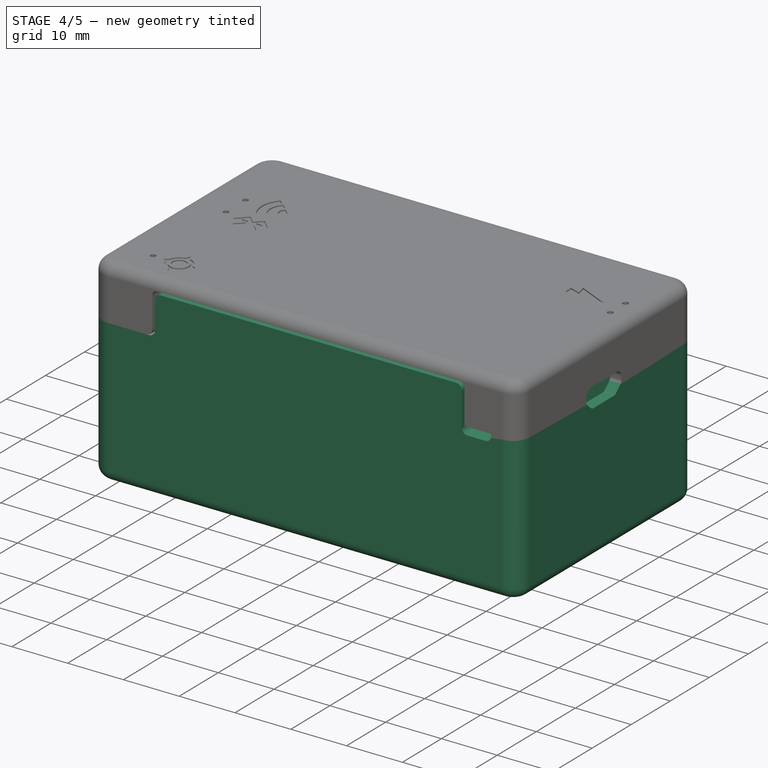
[diagram: stage 4 of 5 — iso view after this stage's code; geometry added in this stage tinted green]
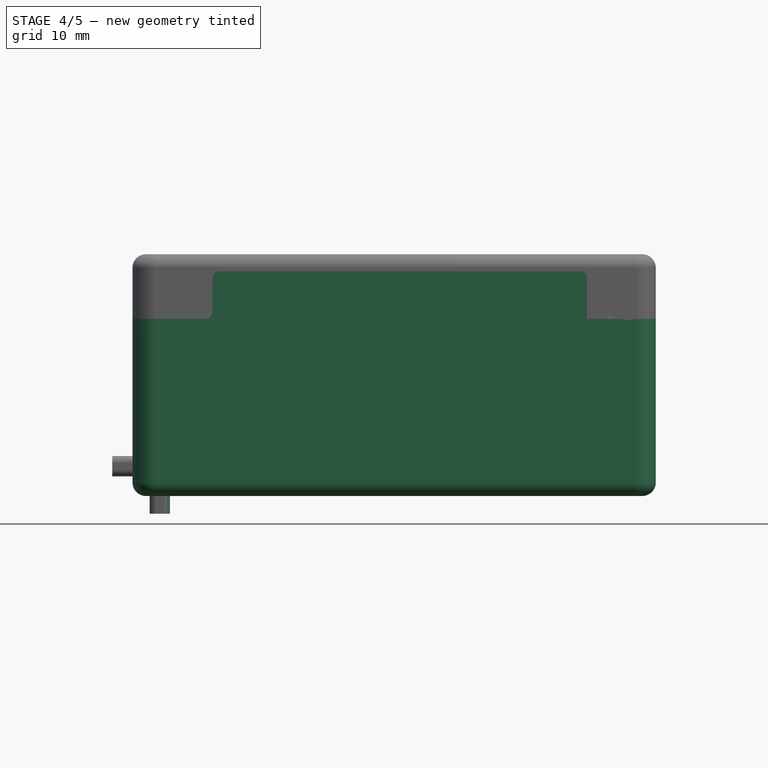
[diagram: stage 4 of 5 — front view after this stage's code; geometry added in this stage tinted green]
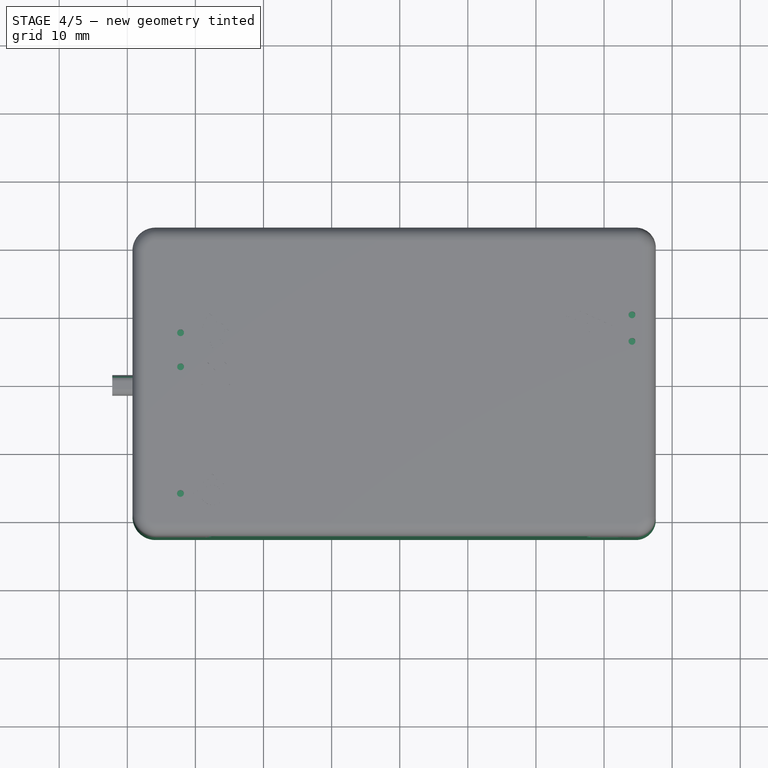
[diagram: stage 4 of 5 — top view after this stage's code; geometry added in this stage tinted green]
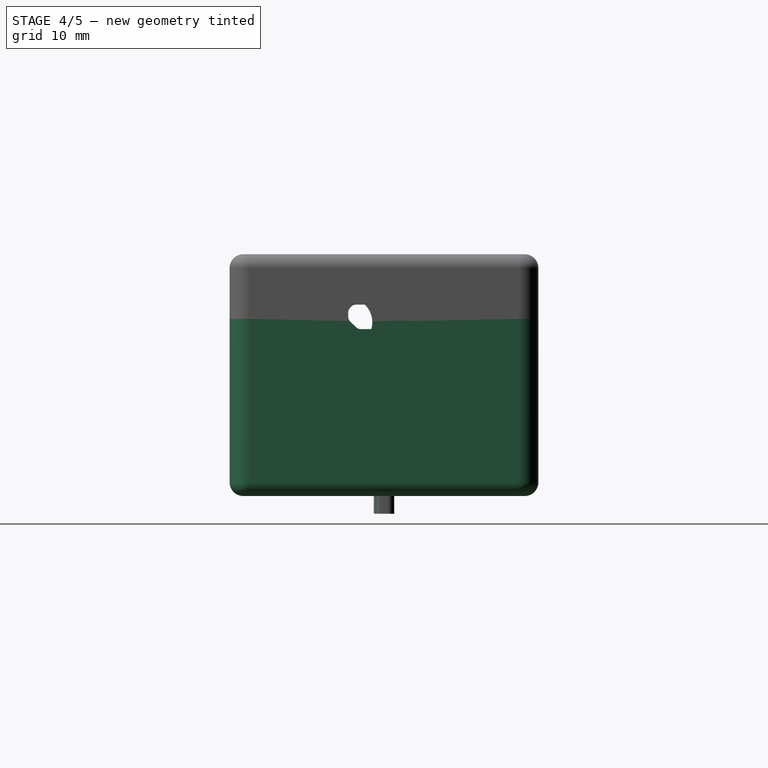
[diagram: stage 4 of 5 — right view after this stage's code; geometry added in this stage tinted green]
FEATURE [Sketcher::SketchObject] Sketch004  label="Ledcutsketch"
  Placement = pos=(0,0,9) rot=(0,0,1;0rad)
  sketch-geometry (5):
    g0: Circle CenterX=-32.1803 CenterY=7.19843 CenterZ=0 NormalX=0 NormalY=0 NormalZ=1 Radius=0.5
    g1: Circle CenterX=-32.1737 CenterY=2.20347 CenterZ=0 NormalX=0 NormalY=0 NormalZ=1 Radius=0.5
    g2: Circle CenterX=-32.1966 CenterY=-16.4027 CenterZ=0 NormalX=0 NormalY=0 NormalZ=1 Radius=0.5
    g3: Circle CenterX=34.0971 CenterY=9.82669 CenterZ=0 NormalX=0 NormalY=0 NormalZ=1 Radius=0.5
    g4: Circle CenterX=34.0971 CenterY=5.93131 CenterZ=0 NormalX=0 NormalY=0 NormalZ=1 Radius=0.5
  constraints (5):
    c: Radius(g0) = 0.5
    c: Radius(g1) = 0.5
    c: Radius(g2) = 0.5
    c: Radius(g4) = 0.5
    c: Radius(g3) = 0.5
FEATURE [Sketcher::SketchObject] Sketch005
  Placement = pos=(0,0,-23.6) rot=(0,0,1;0rad)
FEATURE [Sketcher::SketchObject] Sketch
  Placement = pos=(0,0,1) rot=(0,0,1;0rad)
  sketch-geometry (8):
    g0: LineSegment StartX=-35.8466 StartY=-20.6633 StartZ=0 EndX=34.6515 EndY=-20.6633 EndZ=0
    g1: LineSegment StartX=35.5949 StartY=-19.72 StartZ=0 EndX=35.5949 EndY=19.72 EndZ=0
    g2: LineSegment StartX=34.6515 StartY=20.6633 StartZ=0 EndX=-35.8466 EndY=20.6633 EndZ=0
    g3: LineSegment StartX=-37.2421 StartY=19.2678 StartZ=0 EndX=-37.2421 EndY=-19.2678 EndZ=0
    g4: ArcOfCircle CenterX=-35.8466 CenterY=19.2678 CenterZ=0 NormalX=0 NormalY=0 NormalZ=1 Radius=1.3955 StartAngle=1.5708 EndAngle=3.14159
    g5: ArcOfCircle CenterX=34.6515 CenterY=19.72 CenterZ=0 NormalX=0 NormalY=0 NormalZ=1 Radius=0.94337 StartAngle=0 EndAngle=1.5708
    g6: ArcOfCircle CenterX=34.6515 CenterY=-19.72 CenterZ=0 NormalX=0 NormalY=0 NormalZ=1 Radius=0.94337 StartAngle=4.71239 EndAngle=6.28319
    g7: ArcOfCircle CenterX=-35.8466 CenterY=-19.2678 CenterZ=0 NormalX=0 NormalY=0 NormalZ=1 Radius=1.3955 StartAngle=3.14159 EndAngle=4.71239
  constraints (15):
    c: Horizontal(g0)
    c: Horizontal(g2)
    c: Vertical(g1)
    c: Vertical(g3)
    c: Tangent(g3,g4) = -1.5708
    c: Tangent(g2,g4) = -1.5708
    c: Tangent(g2,g5) = -1.5708
    c: Tangent(g1,g5) = -1.5708
    c: Tangent(g1,g6) = -1.5708
    c: Tangent(g3,g7) = -1.5708
    c: Tangent(g0,g7) = -1.5708
    c: Symmetric(g2,g0,g-1)
    c: Coincident(g6,g0)
    c: Tangent(g0,g6)
    c: Equal(g5,g6)
FEATURE [Part::Part2DObjectPython] Clone2D  label="Clone of Sketch (2D)"  # Draft 2D object (typed FeaturePython)
  Objects = -> [Sketch]
  Placement = pos=(0,0,-23) rot=(0,0,1;0rad)
  Scale = (1,1,1)
FEATURE [PartDesign::Pad] Pad005
  Length = 24
  Length2 = 100
  Placement = pos=(0,0,-23) rot=(0,0,1;0rad)
  Sketch = -> Clone2D
  Type = 0
FEATURE [Part::Thickness] Thickness001
  Faces = -> Pad005 [Face10]
  Intersection = false
  Join = 0
  Mode = 0
  SelfIntersection = false
  Value = 2
FEATURE [PartDesign::Pad] Pad009
  Length = 7
  Length2 = 100
  Sketch = -> Sketch009
  Type = 0
FEATURE [Part::Cut] Cut001  label="Bottom"
  Base = -> Pad009
  Tool = -> Pad003
FEATURE [Part::Cut] Cut004
  Base = -> Cut001
  Tool = -> Pad001
FEATURE [Part::Cut] Cut006
  Base = -> Cut004
  Tool = -> Fillet012
FEATURE [Sketcher::SketchObject] Sketch013
  Placement = pos=(0,0,1) rot=(0,0,1;0rad)
  Support = -> Cut006 [Face25]
  sketch-geometry (4):
    g0: LineSegment StartX=-39.2352 StartY=15.8483 StartZ=0 EndX=-37.2352 EndY=15.8483 EndZ=0
    g1: LineSegment StartX=-37.2352 StartY=15.8483 StartZ=0 EndX=-37.2352 EndY=11.9251 EndZ=0
    g2: LineSegment StartX=-37.2352 StartY=11.9251 StartZ=0 EndX=-39.2352 EndY=11.9251 EndZ=0
    g3: LineSegment StartX=-39.2352 StartY=11.9251 StartZ=0 EndX=-39.2352 EndY=15.8483 EndZ=0
  constraints (8):
    c: Coincident(g0,g1)
    c: Coincident(g1,g2)
    c: Coincident(g2,g3)
    c: Coincident(g3,g0)
    c: Horizontal(g0)
    c: Horizontal(g2)
    c: Vertical(g1)
    c: Vertical(g3)
FEATURE [PartDesign::Pad] Pad012
  Length = 1.5
  Length2 = 100
  Sketch = -> Sketch013
  Type = 0
FEATURE [Sketcher::SketchObject] Sketch014
  Placement = pos=(-39.2352,0,0) rot=(0.57735,-0.57735,-0.57735;2.0944rad)
  Support = -> Pad012 [Face5]
  sketch-geometry (2):
    g0: Circle CenterX=-13.7771 CenterY=3.94559 CenterZ=0 NormalX=0 NormalY=0 NormalZ=1 Radius=0.149585
    g1: Circle CenterX=-13.8622 CenterY=3.99289 CenterZ=0 NormalX=0 NormalY=0 NormalZ=1 Radius=2.23871
FEATURE [PartDesign::Pocket] Pocket002
  Length = 5
  Sketch = -> Sketch014
  Type = 0
FEATURE [PartDesign::Fillet] Fillet015
  Base = -> Pocket002 [Edge145]
  Radius = 1
FEATURE [PartDesign::Fillet] Fillet016
  Base = -> Fillet015 [Edge24]
  Radius = 1
FEATURE [PartDesign::Fillet] Fillet017
  Base = -> Fillet016 [Edge16]
  Radius = 1
FEATURE [PartDesign::Fillet] Fillet018
  Base = -> Fillet017 [Edge49]
  Radius = 1
FEATURE [PartDesign::Fillet] Fillet019
  Base = -> Fillet018 [Edge29]
  Radius = 1
FEATURE [PartDesign::Fillet] Fillet020
  Base = -> Fillet019 [Edge123]
  Radius = 1
FEATURE [PartDesign::Fillet] Fillet021
  Base = -> Fillet020 [Edge18]
  Radius = 1
FEATURE [PartDesign::Fillet] Fillet022
  Base = -> Fillet021 [Edge23]
  Radius = 1
FEATURE [PartDesign::Fillet] Fillet023  label="Bottom001"
  Base = -> Fillet022 [Edge99]
  Radius = 1
FEATURE [PartDesign::Fillet] Fillet049
  Base = -> Fillet048 [Edge10]
  Placement = pos=(0,0,0) rot=(1,0,0;1.5708rad)
  Radius = 1
FEATURE [PartDesign::Fillet] Fillet050
  Base = -> Fillet049 [Edge22]
  Placement = pos=(0,0,0) rot=(1,0,0;1.5708rad)
  Radius = 1
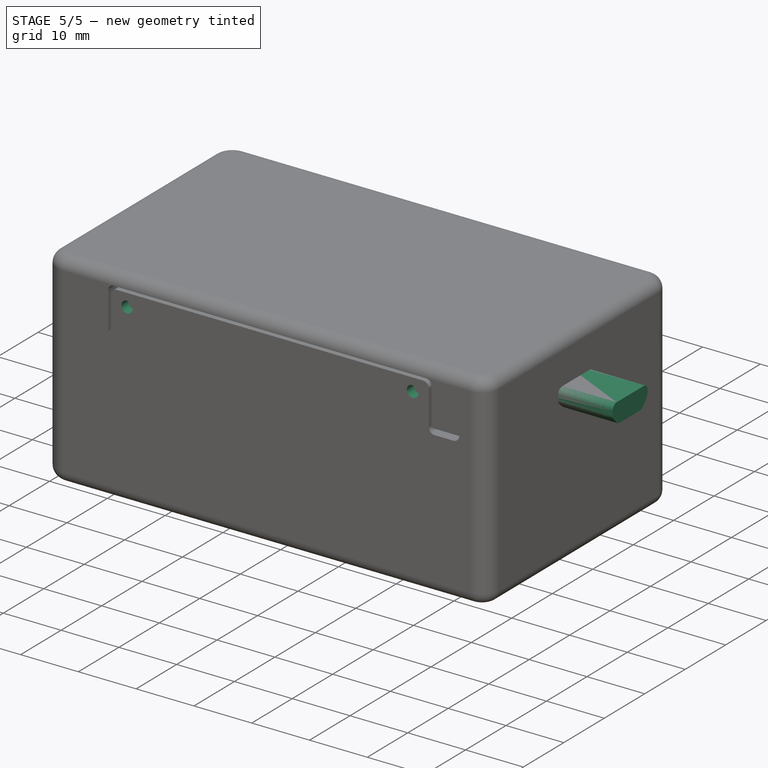
[diagram: stage 5 of 5 — iso view after this stage's code; geometry added in this stage tinted green]
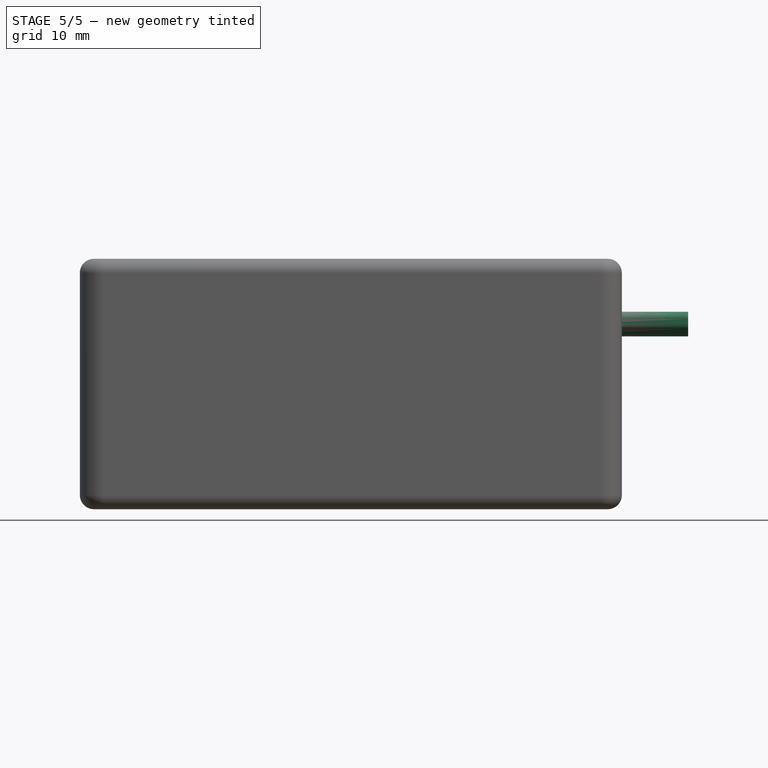
[diagram: stage 5 of 5 — front view after this stage's code; geometry added in this stage tinted green]
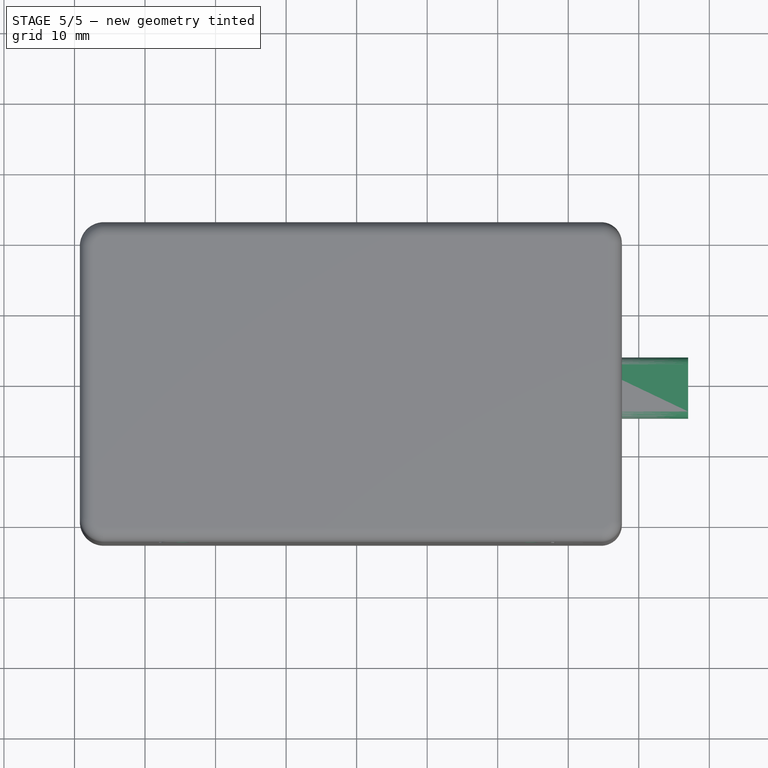
[diagram: stage 5 of 5 — top view after this stage's code; geometry added in this stage tinted green]
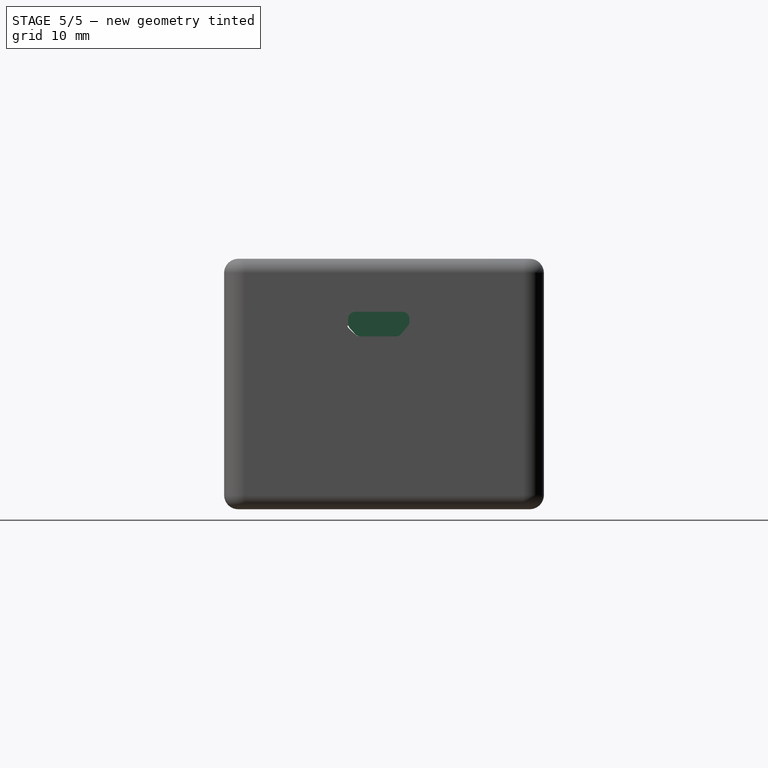
[diagram: stage 5 of 5 — right view after this stage's code; geometry added in this stage tinted green]
FEATURE [Sketcher::SketchObject] Sketch002
  Placement = pos=(37,0,0) rot=(0.57735,0.57735,0.57735;2.0944rad)
  sketch-geometry (8):
    g0: LineSegment StartX=-4.56337 StartY=3.09173 StartZ=0 EndX=2.93858 EndY=3.09173 EndZ=0
    g1: LineSegment StartX=-5.24226 StartY=2.31589 StartZ=0 EndX=-5.24226 EndY=0.873195 EndZ=0
    g2: LineSegment StartX=-5.24226 StartY=0.873195 StartZ=0 EndX=-3.787 EndY=-0.503112 EndZ=0
    g3: LineSegment StartX=-3.787 StartY=-0.503112 StartZ=0 EndX=2.16131 EndY=-0.503112 EndZ=0
    g4: LineSegment StartX=2.16131 StartY=-0.503112 StartZ=0 EndX=3.78209 EndY=0.95408 EndZ=0
    g5: LineSegment StartX=3.78209 StartY=0.95408 StartZ=0 EndX=3.78209 EndY=2.34066 EndZ=0
    g6: LineSegment StartX=-5.24226 StartY=2.31589 StartZ=0 EndX=-4.56337 EndY=3.09173 EndZ=0
    g7: LineSegment StartX=2.93858 StartY=3.09173 StartZ=0 EndX=3.78209 EndY=2.34066 EndZ=0
  constraints (16):
    c: Horizontal(g0)
    c: Coincident(g3,g2)
    c: Horizontal(g3)
    c: Coincident(g4,g3)
    c: Coincident(g4,g5)
    c: Coincident(g2,g1)
    c: Vertical(g1)
    c: Vertical(g5)
    c: PointOnObject(g6,g1)
    c: PointOnObject(g6,g0)
    c: Coincident(g6,g1)
    c: Coincident(g0,g6)
    c: PointOnObject(g7,g0)
    c: PointOnObject(g7,g5)
    c: Coincident(g0,g7)
    c: Coincident(g5,g7)
FEATURE [PartDesign::Fillet] Fillet002
  Placement = pos=(37,0,0) rot=(0.57735,0.57735,0.57735;2.0944rad)
  Radius = 1
FEATURE [PartDesign::Fillet] Fillet003
  Base = -> Fillet002 [Edge25]
  Placement = pos=(37,0,0) rot=(0.57735,0.57735,0.57735;2.0944rad)
  Radius = 1
FEATURE [PartDesign::Fillet] Fillet004
  Base = -> Fillet003 [Edge16]
  Placement = pos=(37,0,0) rot=(0.57735,0.57735,0.57735;2.0944rad)
  Radius = 1
FEATURE [PartDesign::Fillet] Fillet005
  Base = -> Fillet004 [Edge13]
  Placement = pos=(37,0,0) rot=(0.57735,0.57735,0.57735;2.0944rad)
  Radius = 1
FEATURE [Sketcher::SketchObject] Sketch010
  Placement = pos=(0,-20.6633,0) rot=(0,0.707107,0.707107;3.14159rad)
  Support = -> Pocket [Face1]
  sketch-geometry (4):
    g0: LineSegment StartX=-30.5 StartY=8.5 StartZ=0 EndX=30.5 EndY=8.5 EndZ=0
    g1: LineSegment StartX=30.5 StartY=8.5 StartZ=0 EndX=30.5 EndY=1 EndZ=0
    g2: LineSegment StartX=30.5 StartY=1 StartZ=0 EndX=-30.5 EndY=1 EndZ=0
    g3: LineSegment StartX=-30.5 StartY=1 StartZ=0 EndX=-30.5 EndY=8.5 EndZ=0
  constraints (12):
    c: Coincident(g0,g1)
    c: Coincident(g1,g2)
    c: Coincident(g2,g3)
    c: Coincident(g3,g0)
    c: Horizontal(g0)
    c: Horizontal(g2)
    c: Vertical(g1)
    c: Vertical(g3)
    c: Symmetric(g0,g0,g-2)
    c: DistanceY(g-1,g2) = 1
    c: DistanceY(g2,g0) = 7.5
    c: DistanceX(g0,g0) = 61
FEATURE [Sketcher::SketchObject] Sketch011
  Placement = pos=(0,20.6633,0) rot=(1,0,0;1.5708rad)
  Support = -> Pocket [Face36]
  sketch-geometry (4):
    g0: LineSegment StartX=-30.5 StartY=8.5 StartZ=0 EndX=30.5 EndY=8.5 EndZ=0
    g1: LineSegment StartX=30.5 StartY=8.5 StartZ=0 EndX=30.5 EndY=1 EndZ=0
    g2: LineSegment StartX=30.5 StartY=1 StartZ=0 EndX=-30.5 EndY=1 EndZ=0
    g3: LineSegment StartX=-30.5 StartY=1 StartZ=0 EndX=-30.5 EndY=8.5 EndZ=0
  constraints (12):
    c: Coincident(g0,g1)
    c: Coincident(g1,g2)
    c: Coincident(g2,g3)
    c: Coincident(g3,g0)
    c: Horizontal(g0)
    c: Horizontal(g2)
    c: Vertical(g1)
    c: Vertical(g3)
    c: Symmetric(g0,g0,g-2)
    c: DistanceY(g2,g0) = 7.5
    c: DistanceY(g-1,g2) = 1
    c: DistanceX(g0,g0) = 61
FEATURE [PartDesign::Pad] Pad007
  Length = 2
  Length2 = 100
  Sketch = -> Sketch011
  Type = 0
FEATURE [PartDesign::Fillet] Fillet037
  Base = -> Fillet023 [Edge21]
  Radius = 1
FEATURE [PartDesign::Fillet] Fillet038  label="Bottom002"
  Base = -> Fillet037 [Edge12]
  Radius = 1
FEATURE [Sketcher::SketchObject] Sketch016
  Placement = pos=(0,20.6633,0) rot=(1,0,0;1.5708rad)
  Support = -> Fillet038 [Face17]
  sketch-geometry (8):
    g0: LineSegment StartX=-25 StartY=-2 StartZ=0 EndX=-21 EndY=-2 EndZ=0
    g1: LineSegment StartX=-21 StartY=-2 StartZ=0 EndX=-21 EndY=-4 EndZ=0
    g2: LineSegment StartX=-21 StartY=-4 StartZ=0 EndX=-25 EndY=-4 EndZ=0
    g3: LineSegment StartX=-25 StartY=-4 StartZ=0 EndX=-25 EndY=-2 EndZ=0
    g4: LineSegment StartX=25 StartY=-2 StartZ=0 EndX=21 EndY=-2 EndZ=0
    g5: LineSegment StartX=21 StartY=-2 StartZ=0 EndX=21 EndY=-4 EndZ=0
    g6: LineSegment StartX=21 StartY=-4 StartZ=0 EndX=25 EndY=-4 EndZ=0
    g7: LineSegment StartX=25 StartY=-4 StartZ=0 EndX=25 EndY=-2 EndZ=0
  constraints (23):
    c: Coincident(g0,g1)
    c: Coincident(g1,g2)
    c: Coincident(g2,g3)
    c: Coincident(g3,g0)
    c: Horizontal(g0)
    c: Horizontal(g2)
    c: Vertical(g1)
    c: Vertical(g3)
    c: DistanceY(g2,g0) = 2
    c: DistanceX(g2,g1) = 4
    c: DistanceY(g0,g-1) = 2
    c: Coincident(g4,g5)
    c: Coincident(g5,g6)
    c: Coincident(g6,g7)
    c: Coincident(g7,g4)
    c: Horizontal(g4)
    c: Horizontal(g6)
    c: Vertical(g5)
    c: Vertical(g7)
    c: Equal(g5,g1)
    c: Equal(g4,g0)
    c: Symmetric(g0,g4,g-2)
    c: DistanceX(g0,g4) = 42
FEATURE [PartDesign::Pad] Pad014
  Length = 2
  Length2 = 100
  Sketch = -> Sketch016
  Type = 0
FEATURE [Sketcher::SketchObject] Sketch017
  Placement = pos=(0,-20.6633,0) rot=(0,0.707107,0.707107;3.14159rad)
  Support = -> Pad014 [Face61]
  sketch-geometry (8):
    g0: LineSegment StartX=-25 StartY=-2 StartZ=0 EndX=-21 EndY=-2 EndZ=0
    g1: LineSegment StartX=-21 StartY=-2 StartZ=0 EndX=-21 EndY=-4 EndZ=0
    g2: LineSegment StartX=-21 StartY=-4 StartZ=0 EndX=-25 EndY=-4 EndZ=0
    g3: LineSegment StartX=-25 StartY=-4 StartZ=0 EndX=-25 EndY=-2 EndZ=0
    g4: LineSegment StartX=21 StartY=-2 StartZ=0 EndX=25 EndY=-2 EndZ=0
    g5: LineSegment StartX=25 StartY=-2 StartZ=0 EndX=25 EndY=-4 EndZ=0
    g6: LineSegment StartX=25 StartY=-4 StartZ=0 EndX=21 EndY=-4 EndZ=0
    g7: LineSegment StartX=21 StartY=-4 StartZ=0 EndX=21 EndY=-2 EndZ=0
  constraints (23):
    c: Coincident(g0,g1)
    c: Coincident(g1,g2)
    c: Coincident(g2,g3)
    c: Coincident(g3,g0)
    c: Horizontal(g0)
    c: Horizontal(g2)
    c: Vertical(g1)
    c: Vertical(g3)
    c: Coincident(g4,g5)
    c: Coincident(g5,g6)
    c: Coincident(g6,g7)
    c: Coincident(g7,g4)
    c: Horizontal(g4)
    c: Horizontal(g6)
    c: Vertical(g5)
    c: Vertical(g7)
    c: DistanceY(g0,g-1) = 2
    c: DistanceX(g0,g0) = 4
    c: Equal(g3,g7)
    c: Equal(g4,g0)
    c: Symmetric(g0,g4,g-2)
    c: DistanceY(g2,g0) = 2
    c: DistanceX(g0,g4) = 42
FEATURE [PartDesign::Pad] Pad015  label="Bottom003"
  Length = 2
  Length2 = 100
  Sketch = -> Sketch017
  Type = 0
FEATURE [Sketcher::SketchObject] Sketch018
  Placement = pos=(0,18.6633,0) rot=(1,0,0;1.5708rad)
  Support = -> Cut007 [Face26]
  sketch-geometry (2):
    g0: Circle CenterX=-24.7 CenterY=5.8 CenterZ=0 NormalX=0 NormalY=0 NormalZ=1 Radius=2.6
    g1: Circle CenterX=24.7 CenterY=5.8 CenterZ=0 NormalX=0 NormalY=0 NormalZ=1 Radius=2.6
  constraints (5):
    c: Symmetric(g0,g1,g-2)
    c: Equal(g0,g1)
    c: Radius(g0) = 2.6
    c: DistanceY(g-1,g0) = 5.8
    c: DistanceX(g0,g-1) = 24.7
FEATURE [Sketcher::SketchObject] Sketch019
  Placement = pos=(0,-18.6633,0) rot=(0,0.707107,0.707107;3.14159rad)
  sketch-geometry (2):
    g0: Circle CenterX=-24.7 CenterY=5.8 CenterZ=0 NormalX=0 NormalY=0 NormalZ=1 Radius=2.6
    g1: Circle CenterX=24.7 CenterY=5.8 CenterZ=0 NormalX=0 NormalY=0 NormalZ=1 Radius=2.6
  constraints (5):
    c: Symmetric(g0,g1,g-2)
    c: Equal(g0,g1)
    c: Radius(g0) = 2.6
    c: DistanceY(g-1,g0) = 5.8
    c: DistanceX(g0,g-1) = 24.7
FEATURE [Sketcher::SketchObject] Sketch020
  Placement = pos=(0,-20.6633,0) rot=(1,0,0;1.5708rad)
  sketch-geometry (2):
    g0: Circle CenterX=-24.7 CenterY=5.8 CenterZ=0 NormalX=0 NormalY=0 NormalZ=1 Radius=0.64
    g1: Circle CenterX=24.7 CenterY=5.8 CenterZ=0 NormalX=0 NormalY=0 NormalZ=1 Radius=0.64
  constraints (5):
    c: Radius(g0) = 0.64
    c: Symmetric(g1,g0,g-2)
    c: Equal(g1,g0)
    c: DistanceX(g0,g-1) = 24.7
    c: DistanceY(g-1,g0) = 5.8
FEATURE [Sketcher::SketchObject] Sketch021
  Placement = pos=(0,22.6634,0) rot=(0,0.707107,0.707107;3.14159rad)
  Support = -> Pad015 [Face10]
  sketch-geometry (2):
    g0: Circle CenterX=-24.7 CenterY=5.8 CenterZ=0 NormalX=0 NormalY=0 NormalZ=1 Radius=1
    g1: Circle CenterX=24.7 CenterY=5.8 CenterZ=0 NormalX=0 NormalY=0 NormalZ=1 Radius=1
  constraints (5):
    c: Radius(g0) = 1
    c: Symmetric(g0,g1,g-2)
    c: Equal(g1,g0)
    c: DistanceX(g0,g-1) = 24.7
    c: DistanceY(g-1,g0) = 5.8
FEATURE [PartDesign::Pad] Pad017
  Length = 3
  Length2 = 100
  Sketch = -> Sketch018
  Type = 0
FEATURE [PartDesign::Pad] Pad018
  Length = 3
  Length2 = 100
  Placement = pos=(0,-18.6633,0) rot=(0,0.707107,0.707107;3.14159rad)
  Sketch = -> Sketch019
  Type = 0
FEATURE [Part::MultiFuse] Fusion001  label="Top005"
  Shapes = -> [Pad017,Pad018,Sketch020,Sketch021]
FEATURE [Part::Part2DObjectPython] Clone2D003  label="Clone of Sketch021 (2D)"  # Draft 2D object (typed FeaturePython)
  Objects = -> [Sketch021]
  Placement = pos=(0,22.6634,0) rot=(0,0.707107,0.707107;3.14159rad)
  Scale = (1,1,1)
FEATURE [Part::Part2DObjectPython] Clone2D004  label="Clone of Sketch020 (2D)"  # Draft 2D object (typed FeaturePython)
  Objects = -> [Sketch020]
  Placement = pos=(0,-20.6633,0) rot=(1,0,0;1.5708rad)
  Scale = (1,1,1)
FEATURE [PartDesign::Pad] Pad019
  Length = 10
  Length2 = 100
  Placement = pos=(0,-20.6633,0) rot=(1,0,0;1.5708rad)
  Sketch = -> Clone2D004
  Type = 4
FEATURE [Part::Cut] Cut008
  Base = -> Fusion001
  Tool = -> Pad019
FEATURE [PartDesign::Pad] Pad020
  Length = 10
  Length2 = 100
  Placement = pos=(0,22.6634,0) rot=(0,0.707107,0.707107;3.14159rad)
  Sketch = -> Clone2D003
  Type = 4
FEATURE [Part::Cut] Cut009  label="Bottom004"
  Base = -> Pad015
  Tool = -> Pad020
FEATURE [PartDesign::Fillet] Fillet039  label="Bottom005"
  Base = -> Cut009 [Edge83]
  Radius = 3
FEATURE [Sketcher::SketchObject] Sketch022
  Placement = pos=(0,0,0) rot=(1,0,0;1.5708rad)
  sketch-geometry (6):
    g0: LineSegment StartX=-42.2128 StartY=-19.1253 StartZ=0 EndX=-33.7283 EndY=-19.1253 EndZ=0
    g1: LineSegment StartX=-33.7283 StartY=-19.1253 StartZ=0 EndX=-33.7283 EndY=-27.6099 EndZ=0
    g2: LineSegment StartX=-33.7283 StartY=-27.6099 StartZ=0 EndX=-36.7283 EndY=-27.6099 EndZ=0
    g3: LineSegment StartX=-36.7283 StartY=-27.6099 StartZ=0 EndX=-36.7283 EndY=-22.1253 EndZ=0
    g4: LineSegment StartX=-36.7283 StartY=-22.1253 StartZ=0 EndX=-42.2128 EndY=-22.1253 EndZ=0
    g5: LineSegment StartX=-42.2128 StartY=-22.1253 StartZ=0 EndX=-42.2128 EndY=-19.1253 EndZ=0
  constraints (15):
    c: Horizontal(g0)
    c: Coincident(g0,g1)
    c: Coincident(g1,g2)
    c: Coincident(g2,g3)
    c: Coincident(g3,g4)
    c: Horizontal(g4)
    c: Coincident(g4,g5)
    c: Coincident(g5,g0)
    c: Vertical(g5)
    c: Vertical(g1)
    c: Vertical(g3)
    c: Horizontal(g2)
    c: DistanceY(g4,g0) = 3
    c: Equal(g2,g5)
    c: Equal(g4,g3)
FEATURE [Sketcher::SketchObject] Sketch023
  Placement = pos=(-37.2421,0,0) rot=(0.57735,0.57735,0.57735;2.0944rad)
  Support = -> Fillet039 [Face27]
  sketch-geometry (8):
    g0: LineSegment StartX=-1.52885 StartY=-18.9182 StartZ=0 EndX=1.52885 EndY=-18.9182 EndZ=0
    g1: LineSegment StartX=2.72598 StartY=-20.1153 StartZ=0 EndX=2.72598 EndY=-23.2946 EndZ=0
    g2: LineSegment StartX=1.42518 StartY=-24.5954 StartZ=0 EndX=-1.19751 EndY=-24.5954 EndZ=0
    g3: LineSegment StartX=-2.72598 StartY=-23.067 StartZ=0 EndX=-2.72598 EndY=-20.1153 EndZ=0
    g4: ArcOfCircle CenterX=-1.52885 CenterY=-20.1153 CenterZ=0 NormalX=0 NormalY=0 NormalZ=1 Radius=1.19712 StartAngle=1.5708 EndAngle=3.14159
    g5: ArcOfCircle CenterX=1.52885 CenterY=-20.1153 CenterZ=0 NormalX=0 NormalY=0 NormalZ=1 Radius=1.19712 StartAngle=0 EndAngle=1.5708
    g6: ArcOfCircle CenterX=1.42518 CenterY=-23.2946 CenterZ=0 NormalX=0 NormalY=0 NormalZ=1 Radius=1.30079 StartAngle=4.71239 EndAngle=6.28319
    g7: ArcOfCircle CenterX=-1.19751 CenterY=-23.067 CenterZ=0 NormalX=0 NormalY=0 NormalZ=1 Radius=1.52846 StartAngle=3.14159 EndAngle=4.71239
  constraints (14):
    c: Horizontal(g0)
    c: Horizontal(g2)
    c: Vertical(g1)
    c: Vertical(g3)
    c: Tangent(g3,g4) = 1.5708
    c: Tangent(g0,g4) = 1.5708
    c: Tangent(g0,g5) = 1.5708
    c: Tangent(g1,g5) = 1.5708
    c: Tangent(g1,g6) = 1.5708
    c: Tangent(g2,g6) = 1.5708
    c: Tangent(g3,g7) = 1.5708
    c: Tangent(g2,g7) = 1.5708
    c: Symmetric(g0,g0,g-2)
    c: Equal(g5,g4)
FEATURE [PartDesign::Pad] Pad022
  Length = 5
  Length2 = 100
  Sketch = -> Sketch023
  Type = 0
FEATURE [Image::ImagePlane] ImagePlane
  Placement = pos=(-27.5,-16.4,10) rot=(0,0,1;0rad)
  XSize = 6
  YSize = 6
FEATURE [Sketcher::SketchObject] Sketch025  label="GPS"
  Placement = pos=(0,0,10.5) rot=(0,0,1;0rad)
  sketch-geometry (12):
    g0: ArcOfCircle CenterX=-27.507 CenterY=-16.4004 CenterZ=0 NormalX=0 NormalY=0 NormalZ=1 Radius=2.14442 StartAngle=1.7647 EndAngle=2.93797
    g1: LineSegment StartX=-30.4134 StartY=-16.4019 StartZ=0 EndX=-29.6071 EndY=-15.9667 EndZ=0
    g2: LineSegment StartX=-30.4134 StartY=-16.4019 StartZ=0 EndX=-29.6196 EndY=-16.8194 EndZ=0
    g3: ArcOfCircle CenterX=-27.5005 CenterY=-16.392 CenterZ=0 NormalX=0 NormalY=0 NormalZ=1 Radius=2.16175 StartAngle=3.34062 EndAngle=4.51604
    g4: ArcOfCircle CenterX=-27.5005 CenterY=-16.392 CenterZ=0 NormalX=0 NormalY=0 NormalZ=1 Radius=2.15127 StartAngle=4.90951 EndAngle=6.08192
    g5: ArcOfCircle CenterX=-27.5005 CenterY=-16.392 CenterZ=0 NormalX=0 NormalY=0 NormalZ=1 Radius=2.14179 StartAngle=0.19466 EndAngle=1.37283
    g6: LineSegment StartX=-27.0792 StartY=-18.5016 StartZ=0 EndX=-27.5008 EndY=-19.3382 EndZ=0
    g7: LineSegment StartX=-27.5008 StartY=-19.3382 StartZ=0 EndX=-27.9223 EndY=-18.5122 EndZ=0
    g8: LineSegment StartX=-24.5734 StartY=-16.3987 StartZ=0 EndX=-25.3927 EndY=-16.8221 EndZ=0
    g9: LineSegment StartX=-24.5734 StartY=-16.3987 StartZ=0 EndX=-25.3992 EndY=-15.9777 EndZ=0
    g10: LineSegment StartX=-27.9202 StartY=-14.2962 StartZ=0 EndX=-27.4987 EndY=-13.4676 EndZ=0
    g11: LineSegment StartX=-27.4987 StartY=-13.4676 StartZ=0 EndX=-27.0793 EndY=-14.2921 EndZ=0
  constraints (12):
    c: Coincident(g1,g0)
    c: Coincident(g2,g1)
    c: Coincident(g3,g2)
    c: Coincident(g6,g7)
    c: Coincident(g3,g7)
    c: Coincident(g4,g6)
    c: Coincident(g8,g4)
    c: Coincident(g9,g8)
    c: Coincident(g9,g5)
    c: Coincident(g10,g0)
    c: Coincident(g11,g10)
    c: Coincident(g11,g5)
FEATURE [Sketcher::SketchObject] Sketch026  label="GPS2"
  Placement = pos=(0,0,10.3) rot=(0,0,1;0rad)
  sketch-geometry (2):
    g0: Circle CenterX=-27.514 CenterY=-16.3882 CenterZ=0 NormalX=0 NormalY=0 NormalZ=1 Radius=1.69709
    g1: Circle CenterX=-27.514 CenterY=-16.3882 CenterZ=0 NormalX=0 NormalY=0 NormalZ=1 Radius=1.24366
FEATURE [Part::Cut] Cut011  label="Bottom006"
  Base = -> Pad022
  Tool = -> Fillet050
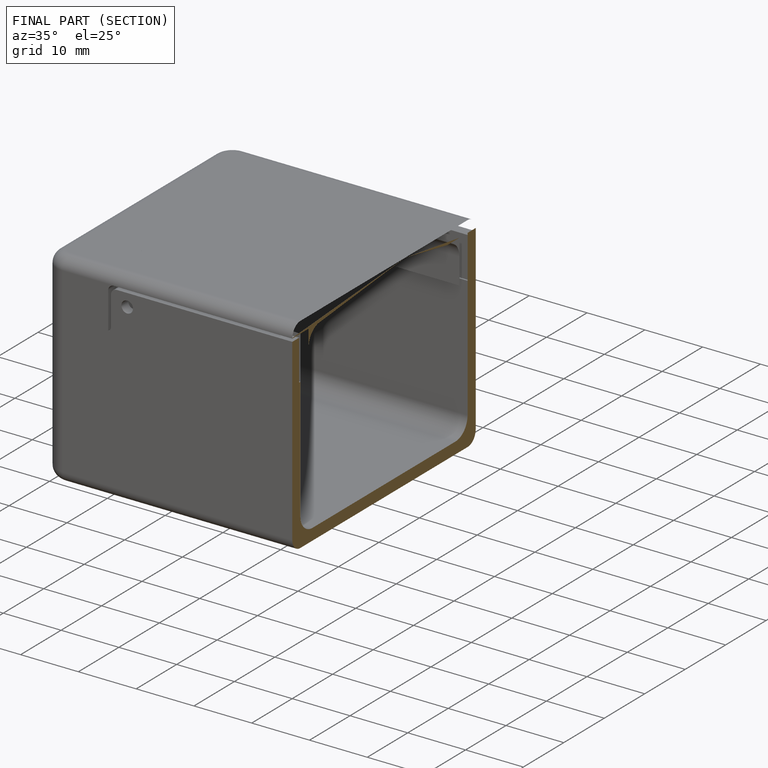
[diagram: finished part — half-section view (interior)]
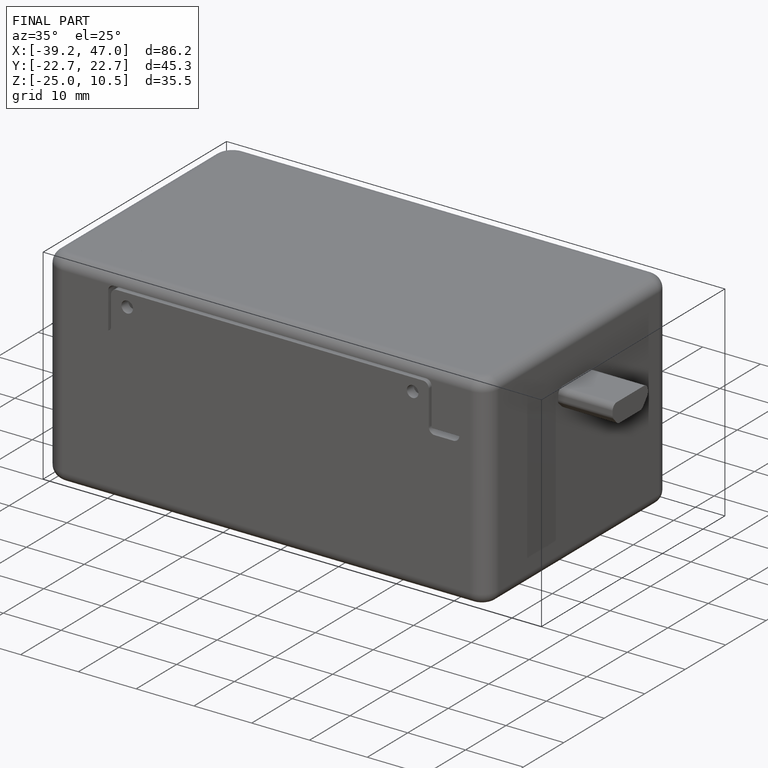
[diagram: finished part — iso view with bounding-box wireframe]
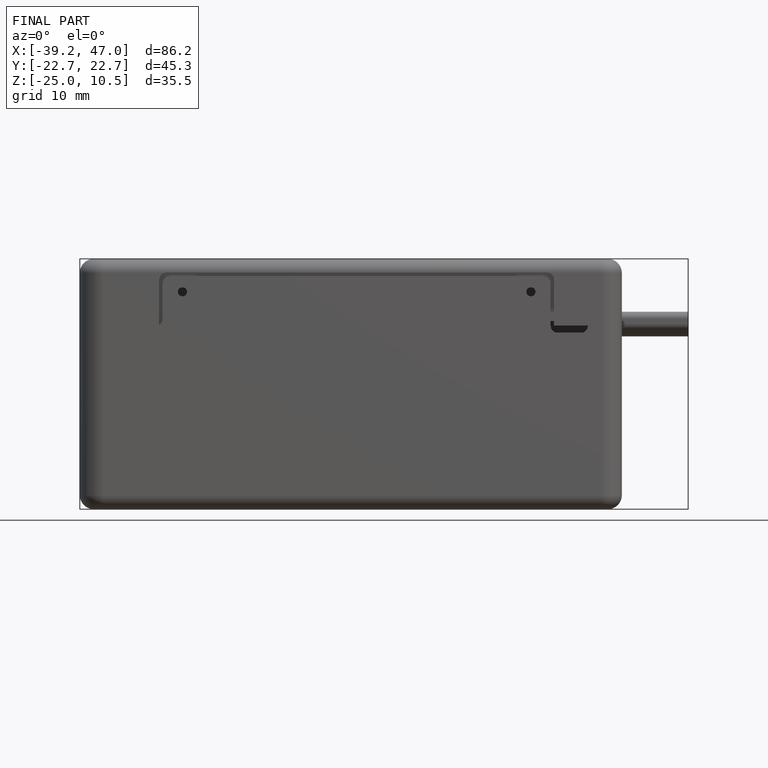
[diagram: finished part — front view with bounding-box wireframe]
